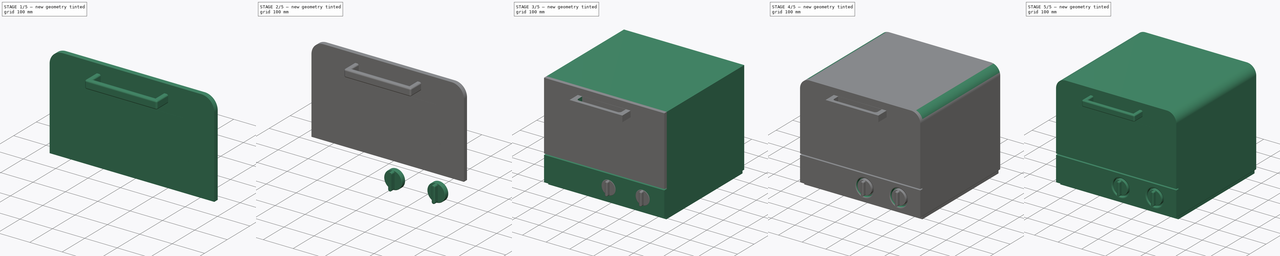
[diagram: build sequence overview — one tinted view per stage of 5, left to right]
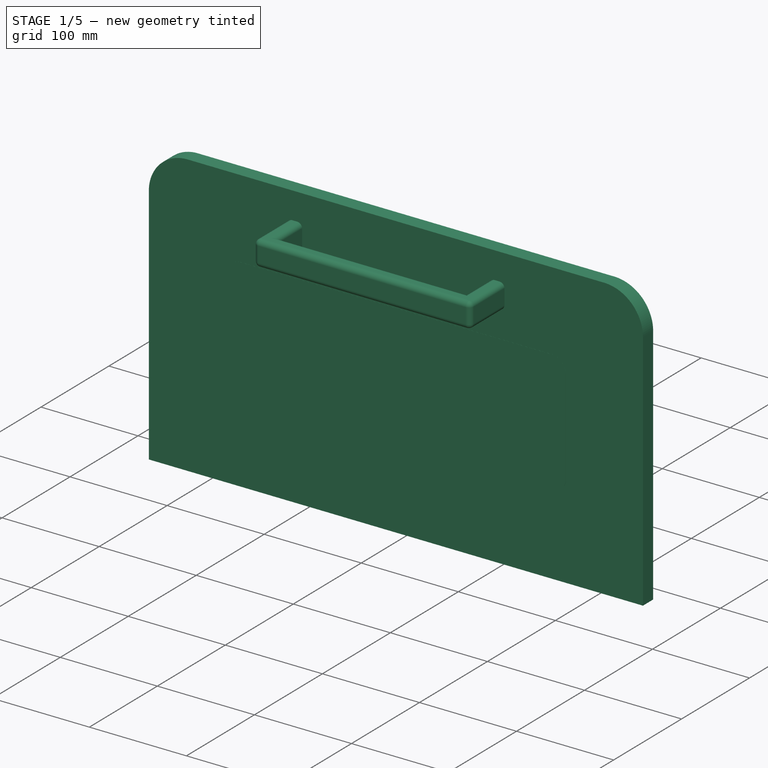
[diagram: stage 1 of 5 — iso view after this stage's code; geometry added in this stage tinted green]
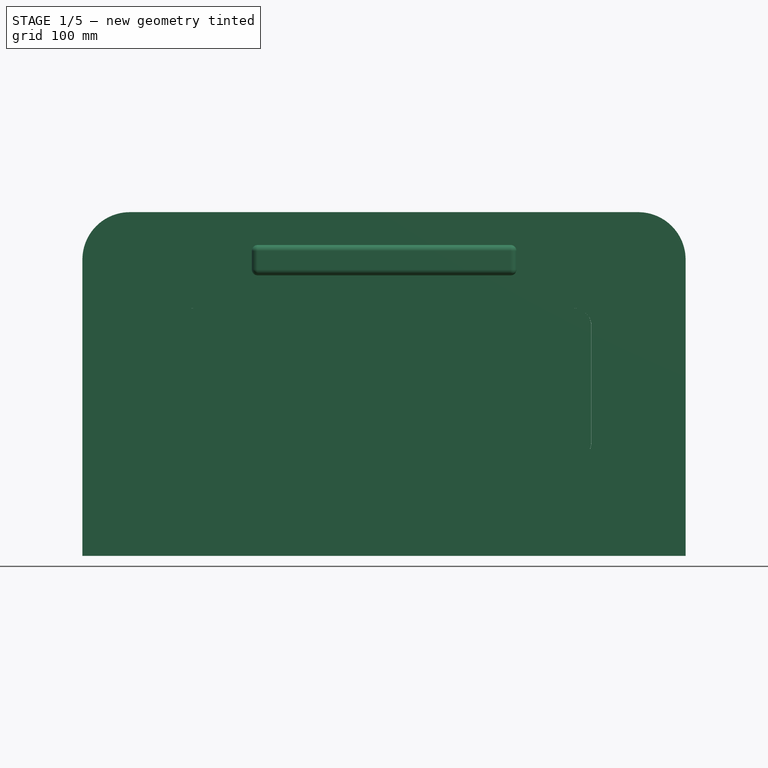
[diagram: stage 1 of 5 — front view after this stage's code; geometry added in this stage tinted green]
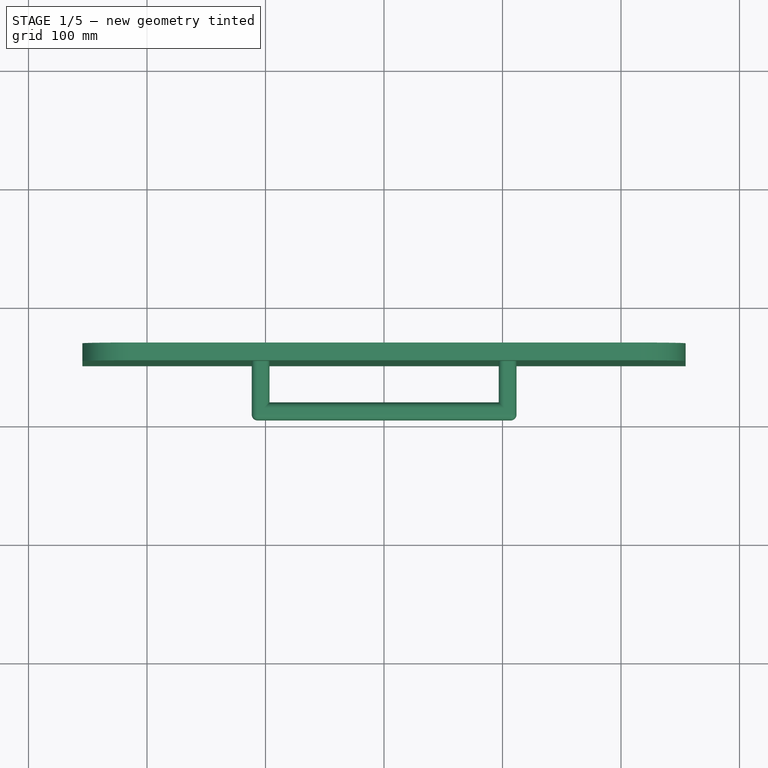
[diagram: stage 1 of 5 — top view after this stage's code; geometry added in this stage tinted green]
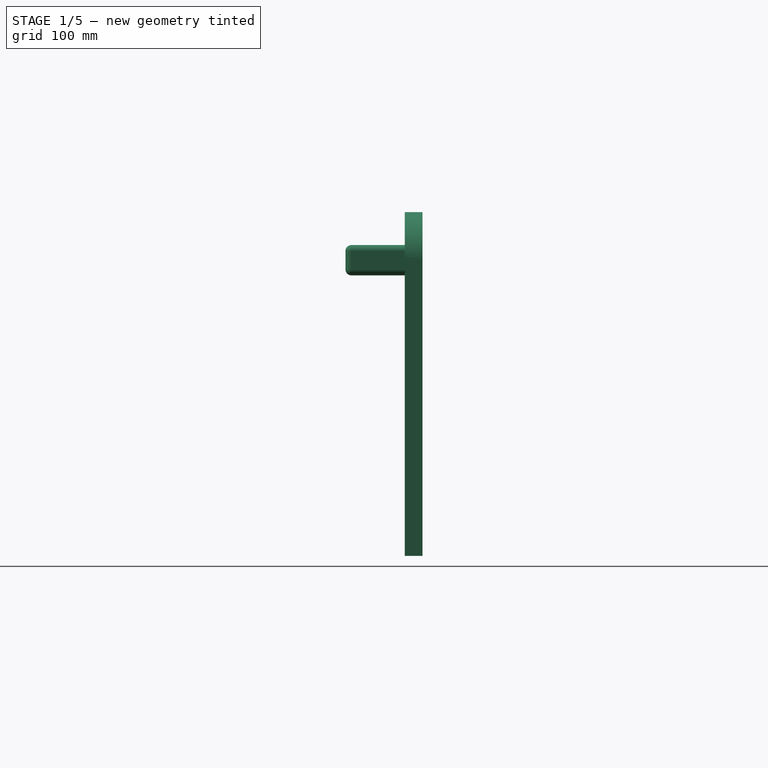
[diagram: stage 1 of 5 — right view after this stage's code; geometry added in this stage tinted green]
FCSTD DOCUMENT  (FreeCAD 1.0R39109 (Git))
Label: toasteroven
License: All rights reserved
LicenseURL: https://en.wikipedia.org/wiki/All_rights_reserved
objects: Sketcher::SketchObject×24, PartDesign::Pad×14, PartDesign::Fillet×14, PartDesign::ShapeBinder×13, PartDesign::Pocket×10, PartDesign::Line×8, PartDesign::Body×6, Part::FeaturePython×6, PartDesign::Plane×2, App::Part×1
note: 197 computed .brp shape members not serialized (recipe doc carries the construction recipe); baked Part::Feature solids carry a one-line shape summary decoded from their .brp

FEATURE [PartDesign::ShapeBinder] CopyPocket013
  TraceSupport = false
FEATURE [Sketcher::SketchObject] Sketch017
  ArcFitTolerance = 1e-06
  AttachmentSupport = -> [CopyPocket013]
  ExternalGeometry = -> [CopyPocket013]
  FullyConstrained = false
  MakeInternals = false
  MapMode = 5
  Placement = pos=(0,-249,0) rot=(1,0,0;1.5708rad)
  sketch-geometry (14):
    g0: LineSegment [constr] StartX=-160 StartY=332.961 StartZ=0 EndX=-175 EndY=332.895 EndZ=0
    g1: LineSegment [constr] StartX=-175 StartY=317.961 StartZ=0 EndX=-175 EndY=332.895 EndZ=0
    g2: LineSegment [constr] StartX=174.86 StartY=220.039 StartZ=0 EndX=174.86 EndY=205.023 EndZ=0
    g3: LineSegment [constr] StartX=160 StartY=205.039 StartZ=0 EndX=174.86 EndY=205.023 EndZ=0
    g4: LineSegment StartX=-175 StartY=318.234 StartZ=0 EndX=-175 EndY=219.685 EndZ=0
    g5: LineSegment StartX=-160.339 StartY=205.023 StartZ=0 EndX=160.199 EndY=205.023 EndZ=0
    g6: LineSegment StartX=174.86 StartY=219.685 StartZ=0 EndX=174.86 EndY=318.234 EndZ=0
    g7: LineSegment StartX=160.199 StartY=332.895 StartZ=0 EndX=-160.339 EndY=332.895 EndZ=0
    g8: ArcOfCircle CenterX=-160.339 CenterY=318.234 CenterZ=0 NormalX=0 NormalY=0 NormalZ=1 AngleXU=0 Radius=14.6613 StartAngle=1.5708 EndAngle=3.14159
    g9: ArcOfCircle CenterX=-160.339 CenterY=219.685 CenterZ=0 NormalX=0 NormalY=0 NormalZ=1 AngleXU=0 Radius=14.6613 StartAngle=3.14159 EndAngle=4.71239
    g10: ArcOfCircle CenterX=160.199 CenterY=219.685 CenterZ=0 NormalX=0 NormalY=0 NormalZ=1 AngleXU=0 Radius=14.6613 StartAngle=4.71239 EndAngle=6.28319
    g11: ArcOfCircle CenterX=160.199 CenterY=318.234 CenterZ=0 NormalX=0 NormalY=0 NormalZ=1 AngleXU=0 Radius=14.6613 StartAngle=0 EndAngle=1.5708
    g12: GeomPoint [constr] X=-175 Y=332.895 Z=0
    g13: GeomPoint [constr] X=174.86 Y=205.023 Z=0
  constraints (24):
    c: Coincident(g1,g-4)
    c: Vertical(g1)
    c: Coincident(g0,g1)
    c: Vertical(g2)
    c: PointOnObject(g2,g3)
    c: Tangent(g4,g8) = -1.5708
    c: Tangent(g4,g9) = -1.5708
    c: Tangent(g5,g9) = -1.5708
    c: Tangent(g5,g10) = -1.5708
    c: Tangent(g6,g10) = -1.5708
    c: Tangent(g6,g11) = -1.5708
    c: Tangent(g7,g11) = -1.5708
    c: Tangent(g7,g8) = -1.5708
    c: Vertical(g4)
    c: Vertical(g6)
    c: Horizontal(g5)
    c: Horizontal(g7)
    c: Equal(g8,g9)
    c: Equal(g9,g10)
    c: Equal(g10,g11)
    c: PointOnObject(g12,g4)
    c: PointOnObject(g12,g7)
    c: PointOnObject(g13,g5)
    c: PointOnObject(g13,g6)
FEATURE [PartDesign::Pad] Pad011
  Direction = (0,-1,2e-16)
  Length = 15
  Length2 = 10
  Profile = -> Sketch017
  ReferenceAxis = -> Sketch017 [N_Axis]
  Refine = true
  Reversed = true
  Suppressed = false
  Type = 0
FEATURE [PartDesign::Pad] Pad012
  Direction = (0,-1,2e-16)
  Length = 50
  Length2 = 10
  Profile = -> Sketch018
  ReferenceAxis = -> Sketch018 [N_Axis]
  Refine = true
  Suppressed = false
  Type = 0
FEATURE [Sketcher::SketchObject] Sketch020
  ArcFitTolerance = 1e-06
  AttachmentSupport = -> [Pad012]
  ExternalGeometry = -> [Pad012]
  FullyConstrained = true
  MakeInternals = false
  MapMode = 5
  Placement = pos=(0,8.5e-14,386.284) rot=(0,0,1;0rad)
  sketch-geometry (4):
    g0: LineSegment StartX=-96.6131 StartY=-284 StartZ=0 EndX=96.814 EndY=-284 EndZ=0
    g1: LineSegment StartX=96.814 StartY=-284 StartZ=0 EndX=96.814 EndY=-249 EndZ=0
    g2: LineSegment StartX=96.814 StartY=-249 StartZ=0 EndX=-96.6131 EndY=-249 EndZ=0
    g3: LineSegment StartX=-96.6131 StartY=-249 StartZ=0 EndX=-96.6131 EndY=-284 EndZ=0
  constraints (12):
    c: Coincident(g0,g1)
    c: Coincident(g1,g2)
    c: Coincident(g2,g3)
    c: Coincident(g3,g0)
    c: Horizontal(g0)
    c: Horizontal(g2)
    c: Vertical(g1)
    c: Vertical(g3)
    c: PointOnObject(g2,g-7)
    c: DistanceX(g-5,g0) = 15
    c: DistanceX(g0,g-6) = 15
    c: DistanceY(g-6,g0) = 15
FEATURE [PartDesign::Pocket] Pocket007
  BaseFeature = -> Pad012
  Direction = (0,0,-1)
  Length = 5
  Length2 = 5
  Profile = -> Sketch020
  ReferenceAxis = -> Sketch020 [N_Axis]
  Refine = true
  Suppressed = false
  Type = 1
FEATURE [PartDesign::Fillet] Fillet012
  Base = -> Pocket007 [Edge18]
  BaseFeature = -> Pocket007
  Radius = 5
  Refine = true
  SupportTransform = false
  Suppressed = false
  UseAllEdges = false
FEATURE [PartDesign::Fillet] Fillet013
  Base = -> Fillet012 [Edge22,Edge35,Edge21,Edge36,Edge19,Edge37]
  BaseFeature = -> Fillet012
  Radius = 5
  Refine = true
  SupportTransform = false
  Suppressed = false
  UseAllEdges = false
FEATURE [PartDesign::Body] Body004
  AllowCompound = false
  Group = -> [CopyPocket014,Sketch018,Pad012,Sketch020,Pocket007,Fillet012,Fillet013]
  Origin = -> Origin004
  Tip = -> Fillet013
FEATURE [PartDesign::ShapeBinder] CopyPocket015
  TraceSupport = false
FEATURE [Sketcher::SketchObject] Sketch021
  ArcFitTolerance = 1e-06
  AttachmentSupport = -> [CopyPocket015]
  ExternalGeometry = -> [CopyPocket015]
  FullyConstrained = false
  MakeInternals = false
  MapMode = 5
  Placement = pos=(0,-249,0) rot=(1,0,0;1.5708rad)
  sketch-geometry (14):
    g0: LineSegment [constr] StartX=-160 StartY=332.961 StartZ=0 EndX=-175 EndY=332.942 EndZ=0
    g1: LineSegment [constr] StartX=-175 StartY=317.961 StartZ=0 EndX=-175 EndY=332.942 EndZ=0
    g2: LineSegment [constr] StartX=175 StartY=220.039 StartZ=0 EndX=175 EndY=205.039 EndZ=0
    g3: LineSegment [constr] StartX=160 StartY=205.039 StartZ=0 EndX=175 EndY=205.039 EndZ=0
    g4: LineSegment [constr] StartX=-214.5 StartY=414 StartZ=0 EndX=-254.5 EndY=414 EndZ=0
    g5: LineSegment [constr] StartX=-254.5 StartY=374 StartZ=0 EndX=-254.5 EndY=414 EndZ=0
    g6: LineSegment StartX=-254.5 StartY=374 StartZ=0 EndX=-254.5 EndY=124 EndZ=0
    g7: LineSegment StartX=-254.5 StartY=124 StartZ=0 EndX=254.5 EndY=124 EndZ=0
    g8: LineSegment StartX=254.5 StartY=124 StartZ=0 EndX=254.5 EndY=374 EndZ=0
    g9: LineSegment StartX=214.5 StartY=414 StartZ=0 EndX=-214.5 EndY=414 EndZ=0
    g10: ArcOfCircle CenterX=-214.5 CenterY=374 CenterZ=0 NormalX=0 NormalY=0 NormalZ=1 AngleXU=0 Radius=40 StartAngle=1.5708 EndAngle=3.14159
    g11: ArcOfCircle CenterX=214.5 CenterY=374 CenterZ=0 NormalX=0 NormalY=0 NormalZ=1 AngleXU=0 Radius=40 StartAngle=0 EndAngle=1.5708
    g12: GeomPoint [constr] X=-254.5 Y=414 Z=0
    g13: GeomPoint [constr] X=254.5 Y=124 Z=0
  constraints (27):
    c: Coincident(g1,g-7)
    c: Vertical(g1)
    c: PointOnObject(g0,g1)
    c: Coincident(g2,g-8)
    c: Vertical(g2)
    c: Coincident(g3,g-8)
    c: Horizontal(g3)
    c: Coincident(g2,g3)
    c: Coincident(g4,g-4)
    c: Horizontal(g4)
    c: Coincident(g5,g-3)
    c: Vertical(g5)
    c: Coincident(g4,g5)
    c: Tangent(g6,g10) = -1.5708
    c: Tangent(g8,g11) = -1.5708
    c: Tangent(g9,g11) = -1.5708
    c: Tangent(g9,g10) = -1.5708
    c: Vertical(g6)
    c: Vertical(g8)
    c: Horizontal(g9)
    c: PointOnObject(g12,g9)
    c: Coincident(g12,g4)
    c: Coincident(g13,g-6)
    c: Coincident(g8,g13)
    c: Coincident(g7,g8)
    c: Coincident(g7,g-5)
    c: Coincident(g6,g7)
FEATURE [PartDesign::Pad] Pad013
  Direction = (0,-1,2e-16)
  Length = 15
  Length2 = 10
  Profile = -> Sketch021
  ReferenceAxis = -> Sketch021 [N_Axis]
  Refine = true
  Reversed = true
  Suppressed = false
  Type = 0
FEATURE [Sketcher::SketchObject] Sketch022
  ArcFitTolerance = 1e-06
  AttachmentSupport = -> [Pad013]
  ExternalGeometry = -> [CopyPocket015]
  FullyConstrained = false
  MakeInternals = false
  MapMode = 5
  Placement = pos=(0,-249,0) rot=(1,0,0;1.5708rad)
  sketch-geometry (14):
    g0: LineSegment [constr] StartX=-160 StartY=332.961 StartZ=0 EndX=-175 EndY=332.942 EndZ=0
    g1: LineSegment [constr] StartX=-175 StartY=317.961 StartZ=0 EndX=-175 EndY=332.942 EndZ=0
    g2: LineSegment [constr] StartX=175 StartY=220.039 StartZ=0 EndX=175 EndY=205.039 EndZ=0
    g3: LineSegment [constr] StartX=160 StartY=205.039 StartZ=0 EndX=175 EndY=205.039 EndZ=0
    g4: LineSegment StartX=-175 StartY=317.975 StartZ=0 EndX=-175 EndY=220.006 EndZ=0
    g5: LineSegment StartX=-160.033 StartY=205.039 StartZ=0 EndX=160.033 EndY=205.039 EndZ=0
    g6: LineSegment StartX=175 StartY=220.006 StartZ=0 EndX=175 EndY=317.975 EndZ=0
    g7: LineSegment StartX=160.033 StartY=332.942 StartZ=0 EndX=-160.033 EndY=332.942 EndZ=0
    g8: ArcOfCircle CenterX=-160.033 CenterY=317.975 CenterZ=0 NormalX=0 NormalY=0 NormalZ=1 AngleXU=0 Radius=14.9674 StartAngle=1.5708 EndAngle=3.14159
    g9: ArcOfCircle CenterX=-160.033 CenterY=220.006 CenterZ=0 NormalX=0 NormalY=0 NormalZ=1 AngleXU=0 Radius=14.9674 StartAngle=3.14159 EndAngle=4.71239
    g10: ArcOfCircle CenterX=160.033 CenterY=220.006 CenterZ=0 NormalX=0 NormalY=0 NormalZ=1 AngleXU=0 Radius=14.9674 StartAngle=4.71239 EndAngle=6.28319
    g11: ArcOfCircle CenterX=160.033 CenterY=317.975 CenterZ=0 NormalX=0 NormalY=0 NormalZ=1 AngleXU=0 Radius=14.9674 StartAngle=0 EndAngle=1.5708
    g12: GeomPoint [constr] X=-175 Y=332.942 Z=0
    g13: GeomPoint [constr] X=175 Y=205.039 Z=0
  constraints (26):
    c: Vertical(g1)
    c: PointOnObject(g0,g1)
    c: Vertical(g2)
    c: Horizontal(g3)
    c: Coincident(g2,g3)
    c: Tangent(g4,g8) = -1.5708
    c: Tangent(g4,g9) = -1.5708
    c: Tangent(g5,g9) = -1.5708
    c: Tangent(g5,g10) = -1.5708
    c: Tangent(g6,g10) = -1.5708
    c: Tangent(g6,g11) = -1.5708
    c: Tangent(g7,g11) = -1.5708
    c: Tangent(g7,g8) = -1.5708
    c: Vertical(g4)
    c: Vertical(g6)
    c: Horizontal(g5)
    c: Horizontal(g7)
    c: Equal(g8,g9)
    c: Equal(g9,g10)
    c: Equal(g10,g11)
    c: PointOnObject(g12,g4)
    c: PointOnObject(g12,g7)
    c: PointOnObject(g13,g5)
    c: PointOnObject(g13,g6)
    c: Coincident(g12,g0)
    c: Coincident(g13,g2)
FEATURE [PartDesign::Pocket] Pocket008
  BaseFeature = -> Pad013
  Direction = (0,1,-2e-16)
  Length = 15
  Length2 = 5
  Profile = -> Sketch022
  ReferenceAxis = -> Sketch022 [N_Axis]
  Refine = true
  Suppressed = false
  Type = 0
FEATURE [Part::FeaturePython] Clone004  label="fromt_panel_clone"  # Draft clone (typed FeaturePython)
  AttacherType = Attacher::AttachEngine3D
  Fuse = false
  Objects = -> [Body005]
  Scale = (1,1,1)
FEATURE [Part::FeaturePython] Clone005  label="glass_clone"  # Draft clone (typed FeaturePython)
  AttacherType = Attacher::AttachEngine3D
  Fuse = false
  Objects = -> [Body003]
  Scale = (1,1,1)
FEATURE [App::Part] Part  label="toasteroven"
  Group = -> [Clone,Clone001,Clone002,Clone003,Clone004,Clone005]
  Origin = -> Origin006
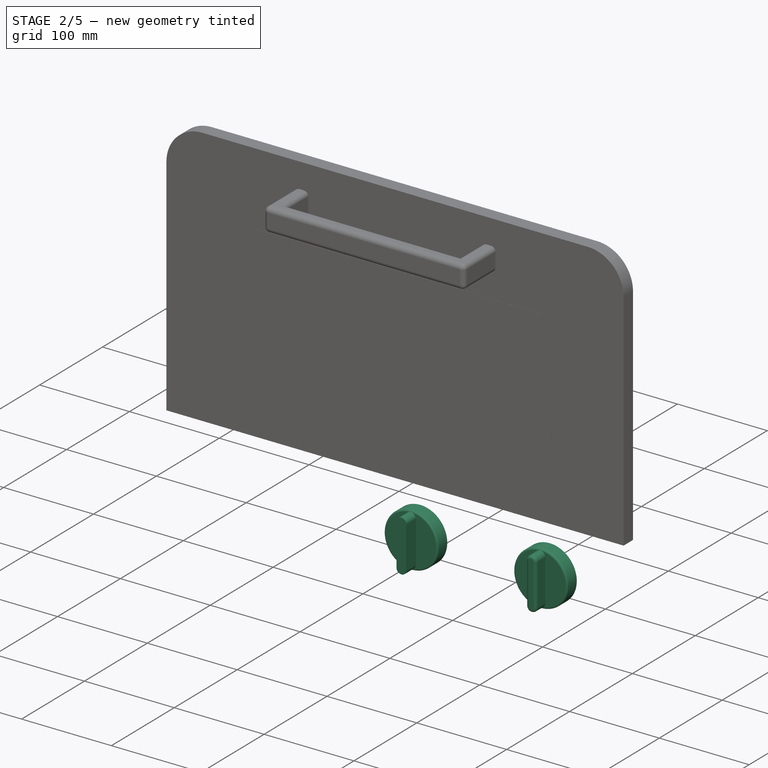
[diagram: stage 2 of 5 — iso view after this stage's code; geometry added in this stage tinted green]
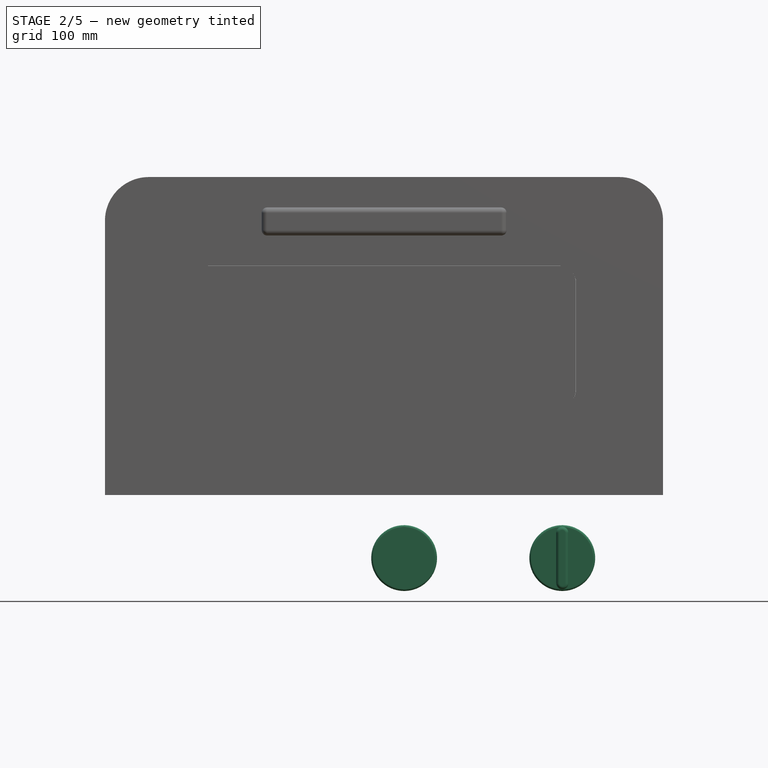
[diagram: stage 2 of 5 — front view after this stage's code; geometry added in this stage tinted green]
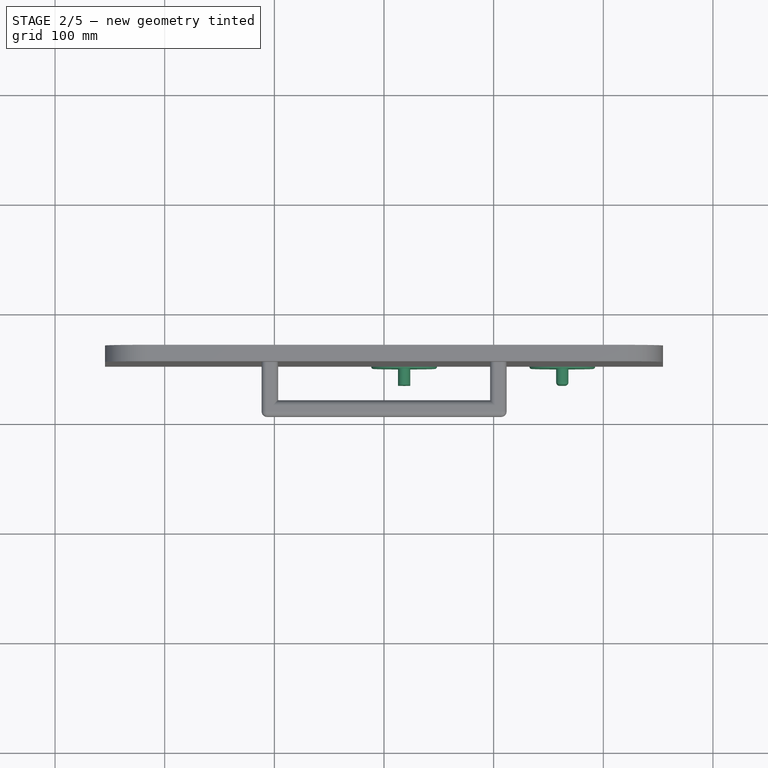
[diagram: stage 2 of 5 — top view after this stage's code; geometry added in this stage tinted green]
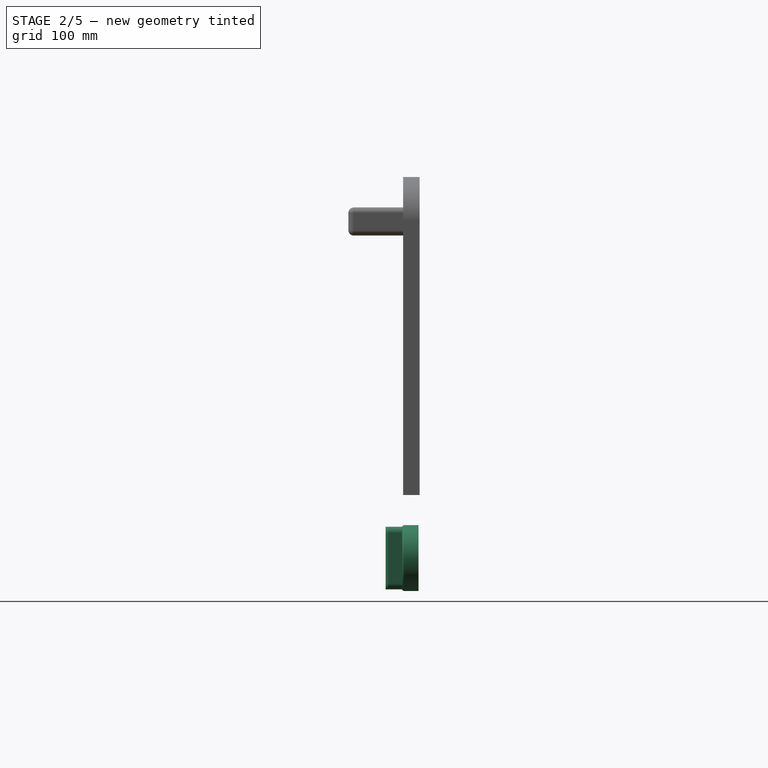
[diagram: stage 2 of 5 — right view after this stage's code; geometry added in this stage tinted green]
FEATURE [PartDesign::ShapeBinder] CopyPocket003
  Placement = pos=(0,-235,1.1e-13) rot=(1,0,0;1.5708rad)
  TraceSupport = false
FEATURE [PartDesign::Plane] DatumPlane
  AttachmentSupport = -> [CopyPocket003]
  Length = 105.028
  MapMode = 11
  Placement = pos=(18.3518,-235,66.5) rot=(0.57735,-0.57735,0.57735;2.0944rad)
  ResizeMode = 0
  Width = 63.5277
FEATURE [Sketcher::SketchObject] Sketch011
  ArcFitTolerance = 1e-06
  AttachmentSupport = -> [DatumPlane]
  ExternalGeometry = -> [CopyPocket003]
  FullyConstrained = false
  MakeInternals = false
  MapMode = 5
  Placement = pos=(18.3518,-235,66.5) rot=(0.57735,-0.57735,0.57735;2.0944rad)
  sketch-geometry (1):
    g0: Circle CenterX=0 CenterY=0 CenterZ=0 NormalX=0 NormalY=0 NormalZ=1 AngleXU=0 Radius=30
  constraints (1):
    c: Coincident(g0,g-1)
FEATURE [PartDesign::Pad] Pad007
  Direction = (0,-1,0)
  Length = 15
  Length2 = 10
  Placement = pos=(18.3518,-235,66.5) rot=(0.57735,-0.57735,0.57735;2.0944rad)
  Profile = -> Sketch011
  ReferenceAxis = -> Sketch011 [N_Axis]
  Refine = true
  Suppressed = false
  Type = 0
FEATURE [PartDesign::ShapeBinder] CopyPocket004
  Placement = pos=(0,-250,1.37e-13) rot=(1,0,0;1.5708rad)
  TraceSupport = false
FEATURE [PartDesign::Line] DatumLine
  AttacherType = Attacher::AttachEngineLine
  AttachmentSupport = -> [CopyPocket004]
  Length = 20
  MapMode = 29
  Placement = pos=(12.8089,-250,1.421e-13) rot=(0,1,0;3.14159rad)
  ResizeMode = 0
FEATURE [PartDesign::ShapeBinder] CopyPocket005
  TraceSupport = false
FEATURE [PartDesign::Line] DatumLine001
  AttacherType = Attacher::AttachEngineLine
  AttachmentSupport = -> [CopyPocket005]
  Length = 20
  MapMode = 19
  Placement = pos=(18.3518,-262,89.5) rot=(0,0.707107,0.707107;3.14159rad)
  ResizeMode = 0
FEATURE [PartDesign::ShapeBinder] CopyPocket006
  TraceSupport = false
FEATURE [PartDesign::Line] DatumLine002
  AttacherType = Attacher::AttachEngineLine
  AttachmentSupport = -> [CopyPocket006]
  Length = 20
  MapMode = 19
  Placement = pos=(18.3518,-262,43.5) rot=(-1,0,0;1.5708rad)
  ResizeMode = 0
FEATURE [PartDesign::ShapeBinder] CopyPocket007
  Placement = pos=(0,-250,1.37e-13) rot=(1,0,0;1.5708rad)
  TraceSupport = false
FEATURE [PartDesign::Line] DatumLine003
  AttacherType = Attacher::AttachEngineLine
  AttachmentSupport = -> [CopyPocket007]
  Length = 20
  MapMode = 29
  Placement = pos=(23.8947,-250,1.421e-13) rot=(0,1,0;3.14159rad)
  ResizeMode = 0
FEATURE [Sketcher::SketchObject] Sketch012
  ArcFitTolerance = 1e-06
  AttachmentSupport = -> [Pad007]
  ExternalGeometry = -> [DatumLine,DatumLine003,CopyPocket005,CopyPocket006]
  FullyConstrained = false
  MakeInternals = false
  MapMode = 5
  Placement = pos=(18.3518,-250,66.5) rot=(0.57735,-0.57735,0.57735;2.0944rad)
  sketch-geometry (4):
    g0: ArcOfCircle CenterX=-23 CenterY=-1.851e-13 CenterZ=0 NormalX=0 NormalY=0 NormalZ=1 AngleXU=0 Radius=5.5429 StartAngle=1.5708 EndAngle=4.71239
    g1: ArcOfCircle CenterX=23 CenterY=-1.851e-13 CenterZ=0 NormalX=0 NormalY=0 NormalZ=1 AngleXU=0 Radius=5.5429 StartAngle=4.71239 EndAngle=7.85398
    g2: LineSegment StartX=-23 StartY=5.5429 StartZ=0 EndX=23 EndY=5.5429 EndZ=0
    g3: LineSegment StartX=-23 StartY=-5.5429 StartZ=0 EndX=23 EndY=-5.5429 EndZ=0
  constraints (6):
    c: Tangent(g0,g2) = 1.5708
    c: Tangent(g0,g3) = -1.5708
    c: Tangent(g1,g2) = 1.5708
    c: Tangent(g1,g3) = -1.5708
    c: Equal(g0,g1)
    c: Horizontal(g3)
FEATURE [PartDesign::Pad] Pad008
  BaseFeature = -> Pad007
  Direction = (0,-1,0)
  Length = 15
  Length2 = 10
  Placement = pos=(18.3518,-235,66.5) rot=(0.57735,-0.57735,0.57735;2.0944rad)
  Profile = -> Sketch012
  ReferenceAxis = -> Sketch012 [N_Axis]
  Refine = true
  Suppressed = false
  Type = 0
FEATURE [PartDesign::Fillet] Fillet008
  Base = -> Pad008 [Edge3]
  BaseFeature = -> Pad008
  Placement = pos=(18.3518,-235,66.5) rot=(0.57735,-0.57735,0.57735;2.0944rad)
  Radius = 2
  Refine = true
  SupportTransform = false
  Suppressed = false
  UseAllEdges = false
FEATURE [PartDesign::Body] Body001
  AllowCompound = false
  Group = -> [DatumPlane,CopyPocket003,Sketch011,Pad007,DatumLine,CopyPocket004,DatumLine001,CopyPocket005,DatumLine002,CopyPocket006,DatumLine003,CopyPocket007,Sketch012,Pad008,Fillet008,Fillet009]
  Origin = -> Origin001
  Tip = -> Fillet009
FEATURE [PartDesign::ShapeBinder] CopyPocket008
  Placement = pos=(0,-235,1.1e-13) rot=(1,0,0;1.5708rad)
  TraceSupport = false
FEATURE [PartDesign::Plane] DatumPlane001
  AttachmentSupport = -> [CopyPocket008]
  Length = 117.702
  MapMode = 11
  Placement = pos=(162.576,-235,66.5) rot=(0.57735,-0.57735,0.57735;2.0944rad)
  ResizeMode = 0
  Width = 213.778
FEATURE [PartDesign::ShapeBinder] CopyPocket009
  TraceSupport = false
FEATURE [PartDesign::Line] DatumLine004
  AttacherType = Attacher::AttachEngineLine
  AttachmentSupport = -> [CopyPocket009]
  Length = 20
  MapMode = 29
  Placement = pos=(157.033,-262,0) rot=(0,0,1;0rad)
  ResizeMode = 0
FEATURE [PartDesign::ShapeBinder] CopyPocket010
  TraceSupport = false
FEATURE [PartDesign::Line] DatumLine005
  AttacherType = Attacher::AttachEngineLine
  AttachmentSupport = -> [CopyPocket010]
  Length = 20
  MapMode = 19
  Placement = pos=(162.576,-262,89.5) rot=(0,0.707107,0.707107;3.14159rad)
  ResizeMode = 0
FEATURE [PartDesign::ShapeBinder] CopyPocket011
  TraceSupport = false
FEATURE [PartDesign::Line] DatumLine006
  AttacherType = Attacher::AttachEngineLine
  AttachmentSupport = -> [CopyPocket011]
  Length = 20
  MapMode = 29
  Placement = pos=(168.119,-262,0) rot=(0,1,0;3.14159rad)
  ResizeMode = 0
FEATURE [PartDesign::ShapeBinder] CopyPocket012
  TraceSupport = false
FEATURE [PartDesign::Line] DatumLine007
  AttacherType = Attacher::AttachEngineLine
  AttachmentSupport = -> [CopyPocket012]
  Length = 20
  MapMode = 19
  Placement = pos=(162.576,-262,43.5) rot=(-1,0,0;1.5708rad)
  ResizeMode = 0
FEATURE [Sketcher::SketchObject] Sketch013
  ArcFitTolerance = 1e-06
  AttachmentSupport = -> [DatumPlane001]
  ExternalGeometry = -> [CopyPocket008]
  FullyConstrained = false
  MakeInternals = false
  MapMode = 5
  Placement = pos=(162.576,-235,66.5) rot=(0.57735,-0.57735,0.57735;2.0944rad)
  sketch-geometry (1):
    g0: Circle CenterX=0 CenterY=0 CenterZ=0 NormalX=0 NormalY=0 NormalZ=1 AngleXU=0 Radius=30
  constraints (1):
    c: Coincident(g0,g-1)
FEATURE [PartDesign::Pad] Pad009
  Direction = (0,-1,0)
  Length = 15
  Length2 = 10
  Placement = pos=(162.576,-235,66.5) rot=(0.57735,-0.57735,0.57735;2.0944rad)
  Profile = -> Sketch013
  ReferenceAxis = -> Sketch013 [N_Axis]
  Refine = true
  Suppressed = false
  Type = 0
FEATURE [Sketcher::SketchObject] Sketch014
  ArcFitTolerance = 1e-06
  AttachmentSupport = -> [Pad009]
  ExternalGeometry = -> [DatumLine004,DatumLine006,CopyPocket012,CopyPocket010]
  FullyConstrained = false
  MakeInternals = false
  MapMode = 5
  Placement = pos=(162.576,-250,66.5) rot=(0.57735,-0.57735,0.57735;2.0944rad)
  sketch-geometry (4):
    g0: ArcOfCircle CenterX=-23 CenterY=-3.707e-13 CenterZ=0 NormalX=0 NormalY=0 NormalZ=1 AngleXU=0 Radius=5.5429 StartAngle=1.5708 EndAngle=4.71239
    g1: ArcOfCircle CenterX=23 CenterY=-3.707e-13 CenterZ=0 NormalX=0 NormalY=0 NormalZ=1 AngleXU=0 Radius=5.5429 StartAngle=4.71239 EndAngle=7.85398
    g2: LineSegment StartX=-23 StartY=5.5429 StartZ=0 EndX=23 EndY=5.5429 EndZ=0
    g3: LineSegment StartX=-23 StartY=-5.5429 StartZ=0 EndX=23 EndY=-5.5429 EndZ=0
  constraints (6):
    c: Tangent(g0,g2) = 1.5708
    c: Tangent(g0,g3) = -1.5708
    c: Tangent(g1,g2) = 1.5708
    c: Tangent(g1,g3) = -1.5708
    c: Equal(g0,g1)
    c: Horizontal(g3)
FEATURE [PartDesign::Pad] Pad010
  BaseFeature = -> Pad009
  Direction = (0,-1,0)
  Length = 15
  Length2 = 10
  Placement = pos=(162.576,-235,66.5) rot=(0.57735,-0.57735,0.57735;2.0944rad)
  Profile = -> Sketch014
  ReferenceAxis = -> Sketch014 [N_Axis]
  Refine = true
  Suppressed = false
  Type = 0
FEATURE [PartDesign::Fillet] Fillet010
  Base = -> Pad010 [Edge3]
  BaseFeature = -> Pad010
  Placement = pos=(162.576,-235,66.5) rot=(0.57735,-0.57735,0.57735;2.0944rad)
  Radius = 2
  Refine = true
  SupportTransform = false
  Suppressed = false
  UseAllEdges = false
FEATURE [PartDesign::Fillet] Fillet011
  Base = -> Fillet010 [Edge30]
  BaseFeature = -> Fillet010
  Placement = pos=(162.576,-235,66.5) rot=(0.57735,-0.57735,0.57735;2.0944rad)
  Radius = 3
  Refine = true
  SupportTransform = false
  Suppressed = false
  UseAllEdges = false
FEATURE [Part::FeaturePython] Clone002  label="right_switch_clone"  # Draft clone (typed FeaturePython)
  AttacherType = Attacher::AttachEngine3D
  Fuse = false
  Objects = -> [Body002]
  Scale = (1,1,1)
FEATURE [Part::FeaturePython] Clone003  label="handle_clone"  # Draft clone (typed FeaturePython)
  AttacherType = Attacher::AttachEngine3D
  Fuse = false
  Objects = -> [Body004]
  Scale = (1,1,1)
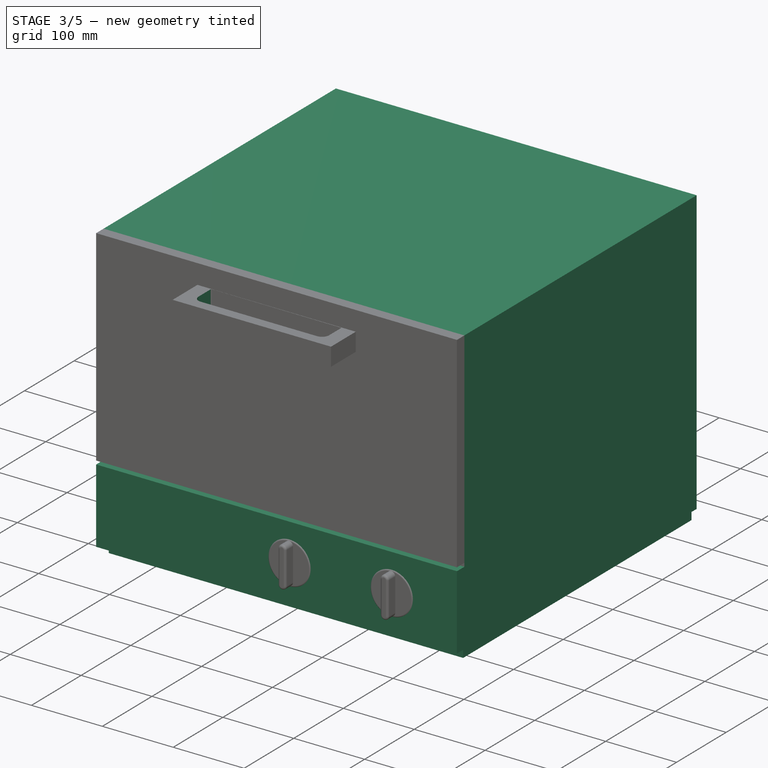
[diagram: stage 3 of 5 — iso view after this stage's code; geometry added in this stage tinted green]
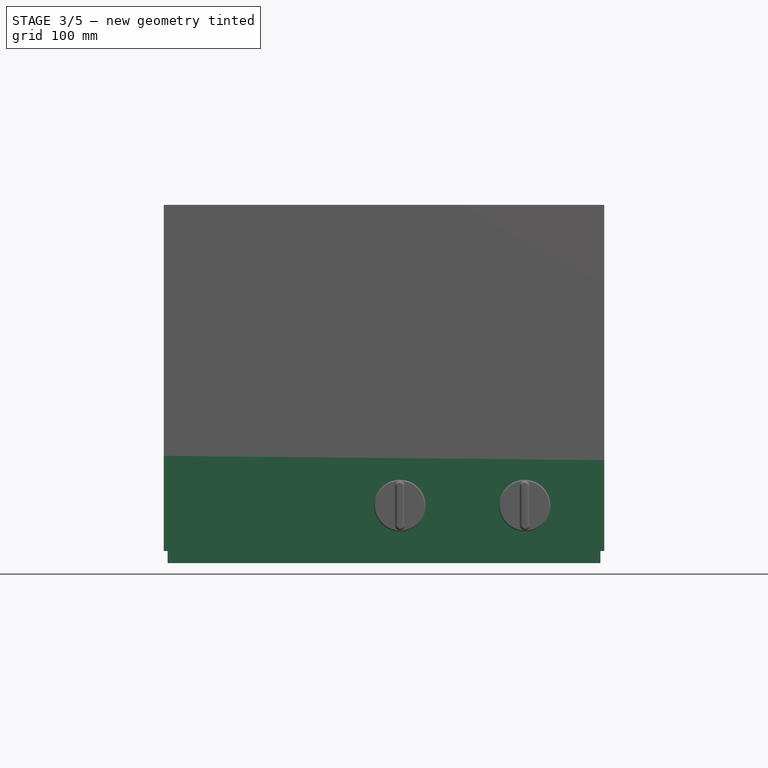
[diagram: stage 3 of 5 — front view after this stage's code; geometry added in this stage tinted green]
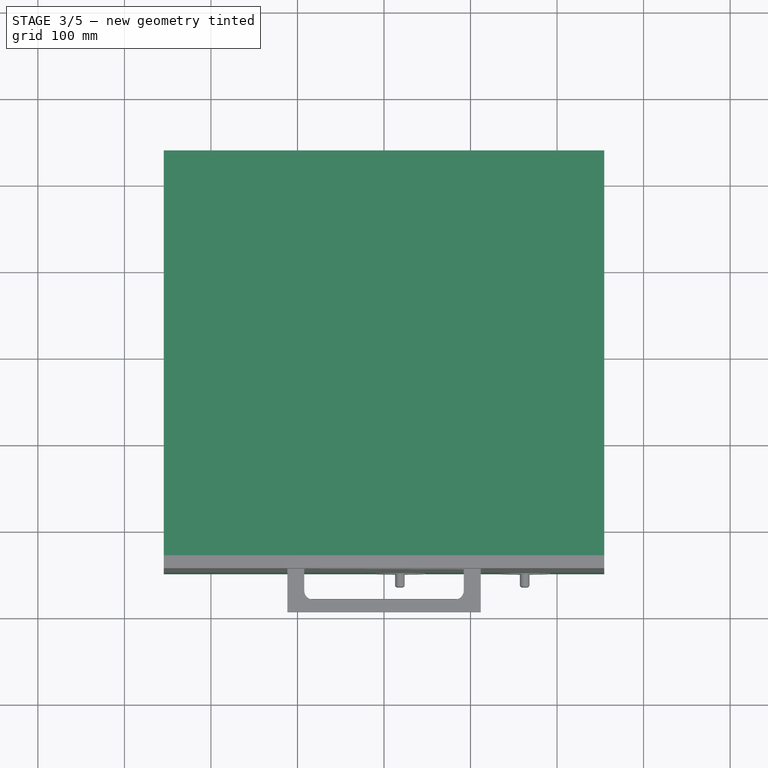
[diagram: stage 3 of 5 — top view after this stage's code; geometry added in this stage tinted green]
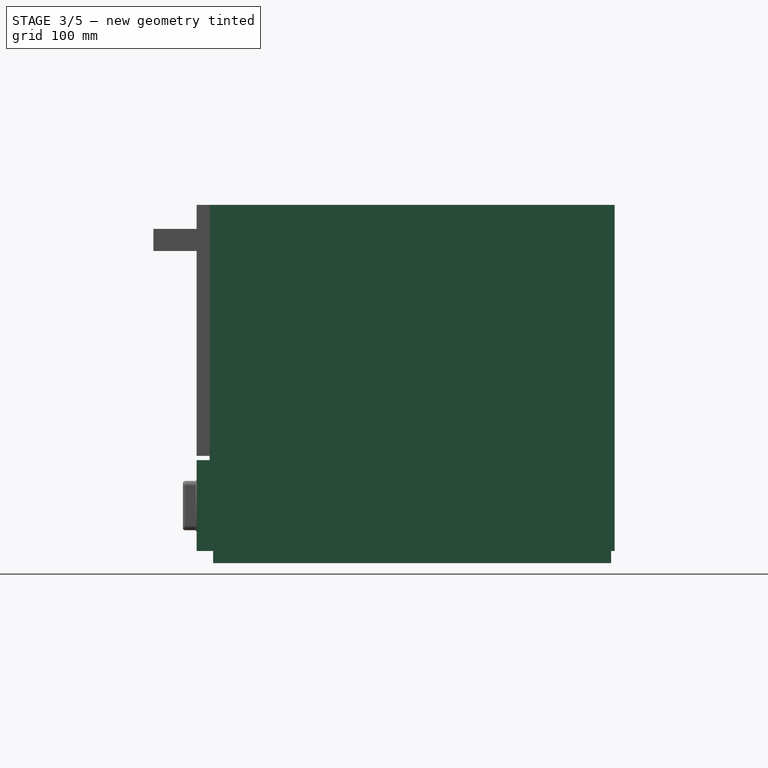
[diagram: stage 3 of 5 — right view after this stage's code; geometry added in this stage tinted green]
FEATURE [Sketcher::SketchObject] Sketch
  ArcFitTolerance = 1e-06
  AttachmentSupport = -> [XY_Plane]
  FullyConstrained = true
  MakeInternals = false
  MapMode = 5
  sketch-geometry (5):
    g0: LineSegment StartX=-250 StartY=-230 StartZ=0 EndX=250 EndY=-230 EndZ=0
    g1: LineSegment StartX=250 StartY=-230 StartZ=0 EndX=250 EndY=230 EndZ=0
    g2: LineSegment StartX=250 StartY=230 StartZ=0 EndX=-250 EndY=230 EndZ=0
    g3: LineSegment StartX=-250 StartY=230 StartZ=0 EndX=-250 EndY=-230 EndZ=0
    g4: GeomPoint [constr] X=0 Y=0 Z=0
  constraints (12):
    c: Coincident(g0,g1)
    c: Coincident(g1,g2)
    c: Coincident(g2,g3)
    c: Coincident(g3,g0)
    c: Horizontal(g0)
    c: Horizontal(g2)
    c: Vertical(g1)
    c: Vertical(g3)
    c: Symmetric(g2,g0,g4)
    c: Distance(g1,g3) = 500
    c: Distance(g0,g2) = 460
    c: Coincident(g4,g-1)
FEATURE [PartDesign::Pad] Pad
  Direction = (0,0,1)
  Length = 14
  Length2 = 10
  Profile = -> Sketch
  ReferenceAxis = -> Sketch [N_Axis]
  Refine = true
  Suppressed = false
  Type = 0
FEATURE [Sketcher::SketchObject] Sketch001
  ArcFitTolerance = 1e-06
  AttachmentSupport = -> [Pad]
  FullyConstrained = true
  MakeInternals = false
  MapMode = 5
  Placement = pos=(0,0,14) rot=(0,0,1;0rad)
  sketch-geometry (5):
    g0: LineSegment StartX=-254.5 StartY=-234 StartZ=0 EndX=254.5 EndY=-234 EndZ=0
    g1: LineSegment StartX=254.5 StartY=-234 StartZ=0 EndX=254.5 EndY=234 EndZ=0
    g2: LineSegment StartX=254.5 StartY=234 StartZ=0 EndX=-254.5 EndY=234 EndZ=0
    g3: LineSegment StartX=-254.5 StartY=234 StartZ=0 EndX=-254.5 EndY=-234 EndZ=0
    g4: GeomPoint [constr] X=0 Y=0 Z=0
  constraints (12):
    c: Coincident(g0,g1)
    c: Coincident(g1,g2)
    c: Coincident(g2,g3)
    c: Coincident(g3,g0)
    c: Horizontal(g0)
    c: Horizontal(g2)
    c: Vertical(g1)
    c: Vertical(g3)
    c: Symmetric(g2,g0,g4)
    c: Distance(g1,g3) = 509
    c: Distance(g0,g2) = 468
    c: Coincident(g4,g-1)
FEATURE [PartDesign::Pad] Pad001
  BaseFeature = -> Pad
  Direction = (0,0,1)
  Length = 400
  Length2 = 10
  Profile = -> Sketch001
  ReferenceAxis = -> Sketch001 [N_Axis]
  Refine = true
  Suppressed = false
  Type = 0
FEATURE [Sketcher::SketchObject] Sketch002
  ArcFitTolerance = 1e-06
  AttachmentSupport = -> [Pad001]
  ExternalGeometry = -> [Pad001]
  FullyConstrained = false
  MakeInternals = false
  MapMode = 5
  Placement = pos=(0,-234,0) rot=(1,0,0;1.5708rad)
  sketch-geometry (23):
    g0: LineSegment StartX=-254.5 StartY=414 StartZ=0 EndX=-254.5 EndY=124 EndZ=0
    g1: LineSegment StartX=-254.5 StartY=124 StartZ=0 EndX=254.5 EndY=124 EndZ=0
    g2: LineSegment StartX=254.5 StartY=124 StartZ=0 EndX=254.5 EndY=414 EndZ=0
    g3: LineSegment StartX=254.5 StartY=414 StartZ=0 EndX=-254.5 EndY=414 EndZ=0
    g4: LineSegment [constr] StartX=-254.5 StartY=124 StartZ=0 EndX=-254.5 EndY=119 EndZ=0
    g5: LineSegment StartX=-254.5 StartY=119 StartZ=0 EndX=-254.5 EndY=14 EndZ=0
    g6: LineSegment StartX=-254.5 StartY=14 StartZ=0 EndX=254.5 EndY=14 EndZ=0
    g7: LineSegment StartX=254.5 StartY=14 StartZ=0 EndX=254.5 EndY=119 EndZ=0
    g8: LineSegment StartX=254.5 StartY=119 StartZ=0 EndX=-254.5 EndY=119 EndZ=0
    g9: LineSegment StartX=-175 StartY=317.961 StartZ=0 EndX=-175 EndY=220.039 EndZ=0
    g10: LineSegment StartX=-160 StartY=205.039 StartZ=0 EndX=160 EndY=205.039 EndZ=0
    g11: LineSegment StartX=175 StartY=220.039 StartZ=0 EndX=175 EndY=317.961 EndZ=0
    g12: LineSegment StartX=160 StartY=332.961 StartZ=0 EndX=-160 EndY=332.961 EndZ=0
    g13: LineSegment [constr] StartX=0 StartY=414 StartZ=0 EndX=8.1e-15 EndY=124 EndZ=0
    g14: LineSegment [constr] StartX=-175 StartY=332.961 StartZ=0 EndX=0 EndY=269 EndZ=0
    g15: ArcOfCircle CenterX=-160 CenterY=317.961 CenterZ=0 NormalX=0 NormalY=0 NormalZ=1 AngleXU=0 Radius=15 StartAngle=1.5708 EndAngle=3.14159
    g16: GeomPoint [constr] X=-175 Y=332.961 Z=0
    g17: ArcOfCircle CenterX=-160 CenterY=220.039 CenterZ=0 NormalX=0 NormalY=0 NormalZ=1 AngleXU=0 Radius=15 StartAngle=3.14159 EndAngle=4.71239
    g18: GeomPoint [constr] X=-175 Y=205.039 Z=0
    g19: ArcOfCircle CenterX=160 CenterY=220.039 CenterZ=0 NormalX=0 NormalY=0 NormalZ=1 AngleXU=0 Radius=15 StartAngle=4.71239 EndAngle=6.28319
    g20: GeomPoint [constr] X=175 Y=205.039 Z=0
    g21: ArcOfCircle CenterX=160 CenterY=317.961 CenterZ=0 NormalX=0 NormalY=0 NormalZ=1 AngleXU=0 Radius=15 StartAngle=-1.7195e-12 EndAngle=1.5708
    g22: GeomPoint [constr] X=175 Y=332.961 Z=0
  constraints (54):
    c: Coincident(g0,g1)
    c: Coincident(g1,g2)
    c: Coincident(g2,g3)
    c: Coincident(g3,g0)
    c: Vertical(g0)
    c: Vertical(g2)
    c: Horizontal(g1)
    c: Horizontal(g3)
    c: Distance(g1,g3) = 290
    c: Coincident(g0,g-3)
    c: PointOnObject(g1,g-4)
    c: Coincident(g4,g0)
    c: PointOnObject(g4,g-3)
    c: DistanceY(g4,g4) = 5
    c: Coincident(g5,g6)
    c: Coincident(g6,g7)
    c: Coincident(g7,g8)
    c: Coincident(g8,g5)
    c: Vertical(g5)
    c: Vertical(g7)
    c: Horizontal(g6)
    c: Horizontal(g8)
    c: Coincident(g5,g4)
    c: Coincident(g6,g-4)
    c: Vertical(g9)
    c: Vertical(g11)
    c: Horizontal(g10)
    c: DistanceX(g16,g22) = 350
    c: Symmetric(g16,g22,g-2)
    c: PointOnObject(g13,g-2)
    c: Symmetric(g1,g1,g13)
    c: PointOnObject(g13,g3)
    c: Coincident(g14,g16)
    c: Symmetric(g13,g13,g14)
    c: PointOnObject(g16,g12)
    c: PointOnObject(g16,g9)
    c: Tangent(g12,g15) = -1.5708
    c: Tangent(g9,g15) = -1.5708
    c: PointOnObject(g18,g10)
    c: Tangent(g9,g17) = -1.5708
    c: Tangent(g10,g17) = -1.5708
    c: PointOnObject(g20,g10)
    c: PointOnObject(g20,g11)
    c: Tangent(g10,g19) = -1.5708
    c: Tangent(g11,g19) = -1.5708
    c: PointOnObject(g22,g11)
    c: PointOnObject(g22,g12)
    c: Tangent(g11,g21) = -1.5708
    c: Tangent(g12,g21) = -1.5708
    c: Equal(g15,g17)
    c: Equal(g17,g19)
    c: Equal(g19,g21)
    c: Symmetric(g22,g18,g14)
    c: Radius(g15) = 15
FEATURE [PartDesign::Pad] Pad002
  BaseFeature = -> Pad001
  Direction = (0,-1,2e-16)
  Length = 15
  Length2 = 10
  Profile = -> Sketch002
  ReferenceAxis = -> Sketch002 [N_Axis]
  Suppressed = false
  Type = 0
FEATURE [Sketcher::SketchObject] Sketch003
  ArcFitTolerance = 1e-06
  AttachmentSupport = -> [Pad002]
  ExternalGeometry = -> [Pad002]
  FullyConstrained = false
  MakeInternals = false
  MapMode = 5
  Placement = pos=(0,-234,0) rot=(1,0,0;1.5708rad)
  sketch-geometry (14):
    g0: LineSegment [constr] StartX=-160.058 StartY=332.961 StartZ=0 EndX=-175 EndY=332.961 EndZ=0
    g1: LineSegment [constr] StartX=175 StartY=220.08 StartZ=0 EndX=175 EndY=205.039 EndZ=0
    g2: LineSegment [constr] StartX=160 StartY=205.039 StartZ=0 EndX=175 EndY=205.039 EndZ=0
    g3: LineSegment [constr] StartX=-175 StartY=317.961 StartZ=0 EndX=-175 EndY=332.961 EndZ=0
    g4: LineSegment StartX=-175 StartY=317.961 StartZ=0 EndX=-175 EndY=220.039 EndZ=0
    g5: LineSegment StartX=-160 StartY=205.039 StartZ=0 EndX=160 EndY=205.039 EndZ=0
    g6: LineSegment StartX=175 StartY=220.039 StartZ=0 EndX=175 EndY=317.961 EndZ=0
    g7: LineSegment StartX=160 StartY=332.961 StartZ=0 EndX=-160 EndY=332.961 EndZ=0
    g8: ArcOfCircle CenterX=-160 CenterY=317.961 CenterZ=0 NormalX=0 NormalY=0 NormalZ=1 AngleXU=0 Radius=15 StartAngle=1.5708 EndAngle=3.14159
    g9: ArcOfCircle CenterX=-160 CenterY=220.039 CenterZ=0 NormalX=0 NormalY=0 NormalZ=1 AngleXU=0 Radius=15 StartAngle=3.14159 EndAngle=4.71239
    g10: ArcOfCircle CenterX=160 CenterY=220.039 CenterZ=0 NormalX=0 NormalY=0 NormalZ=1 AngleXU=0 Radius=15 StartAngle=4.71239 EndAngle=6.28319
    g11: ArcOfCircle CenterX=160 CenterY=317.961 CenterZ=0 NormalX=0 NormalY=0 NormalZ=1 AngleXU=0 Radius=15 StartAngle=0 EndAngle=1.5708
    g12: GeomPoint [constr] X=-175 Y=332.961 Z=0
    g13: GeomPoint [constr] X=175 Y=205.039 Z=0
  constraints (30):
    c: Coincident(g2,g-6)
    c: Horizontal(g2)
    c: Vertical(g1)
    c: Coincident(g1,g2)
    c: Coincident(g3,g-4)
    c: Vertical(g3)
    c: Horizontal(g0)
    c: Coincident(g0,g3)
    c: Tangent(g4,g8) = -1.5708
    c: Tangent(g4,g9) = -1.5708
    c: Tangent(g5,g9) = -1.5708
    c: Tangent(g5,g10) = -1.5708
    c: Tangent(g6,g10) = -1.5708
    c: Tangent(g6,g11) = -1.5708
    c: Tangent(g7,g11) = -1.5708
    c: Tangent(g7,g8) = -1.5708
    c: Vertical(g4)
    c: Vertical(g6)
    c: Horizontal(g5)
    c: Horizontal(g7)
    c: Equal(g8,g9)
    c: Equal(g9,g10)
    c: Equal(g10,g11)
    c: PointOnObject(g12,g4)
    c: PointOnObject(g12,g7)
    c: PointOnObject(g13,g5)
    c: PointOnObject(g13,g6)
    c: Radius(g9) = 15
    c: Coincident(g12,g0)
    c: Coincident(g13,g1)
FEATURE [PartDesign::Pad] Pad003
  BaseFeature = -> Pad002
  Direction = (0,-1,2e-16)
  Length = 15
  Length2 = 10
  Profile = -> Sketch003
  ReferenceAxis = -> Sketch003 [N_Axis]
  Suppressed = false
  Type = 0
FEATURE [Sketcher::SketchObject] Sketch004
  ArcFitTolerance = 1e-06
  AttachmentSupport = -> [Pad003]
  ExternalGeometry = -> [Pad003]
  FullyConstrained = false
  MakeInternals = false
  MapMode = 5
  Placement = pos=(0,-249,0) rot=(1,0,0;1.5708rad)
  sketch-geometry (6):
    g0: LineSegment StartX=-111.613 StartY=386.284 StartZ=0 EndX=-111.613 EndY=360.677 EndZ=0
    g1: LineSegment StartX=-111.613 StartY=360.677 StartZ=0 EndX=111.814 EndY=360.677 EndZ=0
    g2: LineSegment StartX=111.814 StartY=360.677 StartZ=0 EndX=111.814 EndY=386.284 EndZ=0
    g3: LineSegment StartX=111.814 StartY=386.284 StartZ=0 EndX=-111.613 EndY=386.284 EndZ=0
    g4: LineSegment [constr] StartX=0.100445 StartY=414 StartZ=0 EndX=0.100445 EndY=332.961 EndZ=0
    g5: LineSegment [constr] StartX=-111.613 StartY=386.284 StartZ=0 EndX=0.100445 EndY=373.481 EndZ=0
  constraints (14):
    c: Coincident(g0,g1)
    c: Coincident(g1,g2)
    c: Coincident(g2,g3)
    c: Coincident(g3,g0)
    c: Vertical(g0)
    c: Vertical(g2)
    c: Horizontal(g1)
    c: Horizontal(g3)
    c: Vertical(g4)
    c: PointOnObject(g4,g-4)
    c: PointOnObject(g4,g-3)
    c: Coincident(g5,g0)
    c: Symmetric(g4,g4,g5)
    c: Symmetric(g0,g2,g5)
FEATURE [PartDesign::Pad] Pad004
  BaseFeature = -> Pad003
  Direction = (0,-1,2e-16)
  Length = 50
  Length2 = 10
  Profile = -> Sketch004
  ReferenceAxis = -> Sketch004 [N_Axis]
  Suppressed = false
  Type = 0
FEATURE [Sketcher::SketchObject] Sketch005
  ArcFitTolerance = 1e-06
  AttachmentSupport = -> [Pad004]
  ExternalGeometry = -> [Pad004]
  FullyConstrained = false
  MakeInternals = false
  MapMode = 5
  Placement = pos=(0,8.5e-14,386.284) rot=(0,0,1;0rad)
  sketch-geometry (13):
    g0: LineSegment StartX=-92.1016 StartY=-250.2 StartZ=0 EndX=-92.1016 EndY=-274.605 EndZ=0
    g1: LineSegment StartX=-82.1016 StartY=-284.605 StartZ=0 EndX=82.1016 EndY=-284.605 EndZ=0
    g2: LineSegment StartX=92.1016 StartY=-274.605 StartZ=0 EndX=92.1016 EndY=-250.713 EndZ=0
    g3: LineSegment StartX=91.1044 StartY=-249.713 StartZ=0 EndX=-91.0988 EndY=-249.2 EndZ=0
    g4: ArcOfCircle CenterX=-82.1016 CenterY=-274.605 CenterZ=0 NormalX=0 NormalY=0 NormalZ=1 AngleXU=0 Radius=10 StartAngle=3.14159 EndAngle=4.71239
    g5: GeomPoint [constr] X=-92.1016 Y=-284.605 Z=0
    g6: ArcOfCircle CenterX=82.1016 CenterY=-274.605 CenterZ=0 NormalX=0 NormalY=0 NormalZ=1 AngleXU=0 Radius=10 StartAngle=4.71239 EndAngle=6.28319
    g7: GeomPoint [constr] X=92.1016 Y=-284.605 Z=0
    g8: ArcOfCircle CenterX=-91.1016 CenterY=-250.2 CenterZ=0 NormalX=0 NormalY=0 NormalZ=1 AngleXU=0 Radius=1 StartAngle=1.56798 EndAngle=3.14159
    g9: GeomPoint [constr] X=-92.1012 Y=-249 Z=0
    g10: ArcOfCircle CenterX=91.1016 CenterY=-250.713 CenterZ=0 NormalX=0 NormalY=0 NormalZ=1 AngleXU=0 Radius=1 StartAngle=7.3e-15 EndAngle=1.56798
    g11: GeomPoint [constr] X=92.1012 Y=-249 Z=0
    g12: LineSegment [constr] StartX=-91.0988 StartY=-249.2 StartZ=0 EndX=-91.0988 EndY=-249 EndZ=0
  constraints (23):
    c: Vertical(g0)
    c: Vertical(g2)
    c: Symmetric(g5,g7,g-2)
    c: PointOnObject(g5,g0)
    c: PointOnObject(g5,g1)
    c: Tangent(g0,g4) = -1.5708
    c: Tangent(g1,g4) = -1.5708
    c: PointOnObject(g7,g1)
    c: PointOnObject(g7,g2)
    c: Tangent(g1,g6) = -1.5708
    c: Tangent(g2,g6) = -1.5708
    c: Equal(g6,g4)
    c: Radius(g6) = 10
    c: Tangent(g3,g8) = -1.5708
    c: Tangent(g0,g8) = -1.5708
    c: Tangent(g3,g10) = -1.5708
    c: Tangent(g2,g10) = -1.5708
    c: Equal(g10,g8)
    c: Radius(g10) = 1
    c: Coincident(g12,g3)
    c: Vertical(g12)
    c: PointOnObject(g12,g-3)
    c: DistanceY(g12,g12) = 0.2
FEATURE [PartDesign::Pocket] Pocket
  BaseFeature = -> Pad004
  Direction = (0,0,-1)
  Length = 5
  Length2 = 5
  Profile = -> Sketch005
  ReferenceAxis = -> Sketch005 [N_Axis]
  Suppressed = false
  Type = 1
FEATURE [PartDesign::Fillet] Fillet009
  Base = -> Fillet008 [Edge31]
  BaseFeature = -> Fillet008
  Placement = pos=(18.3518,-235,66.5) rot=(0.57735,-0.57735,0.57735;2.0944rad)
  Radius = 3
  Refine = true
  SupportTransform = false
  Suppressed = false
  UseAllEdges = false
FEATURE [Part::FeaturePython] Clone001  label="left_switch_clone"  # Draft clone (typed FeaturePython)
  AttacherType = Attacher::AttachEngine3D
  Fuse = false
  Objects = -> [Body001]
  Scale = (1,1,1)
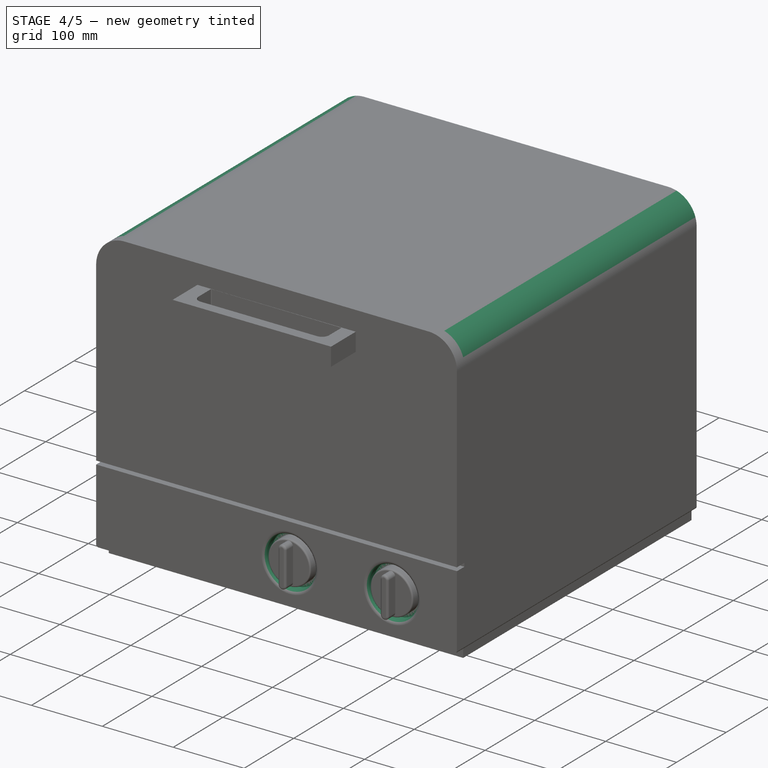
[diagram: stage 4 of 5 — iso view after this stage's code; geometry added in this stage tinted green]
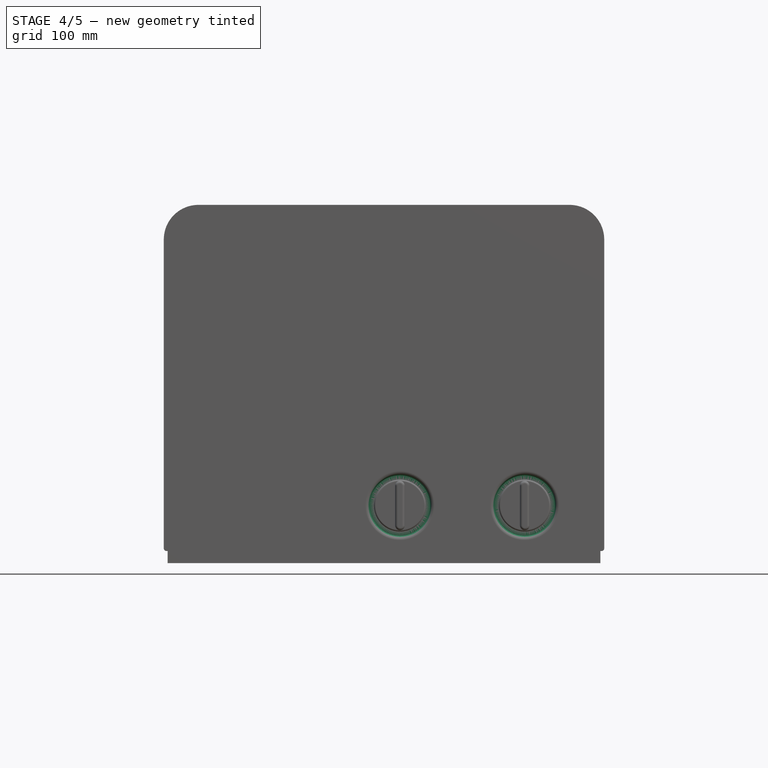
[diagram: stage 4 of 5 — front view after this stage's code; geometry added in this stage tinted green]
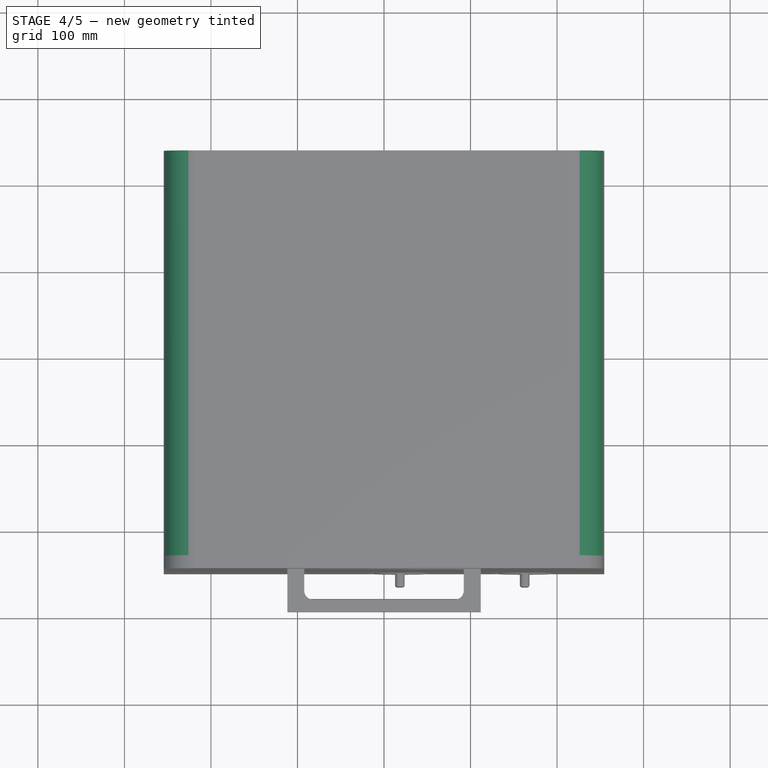
[diagram: stage 4 of 5 — top view after this stage's code; geometry added in this stage tinted green]
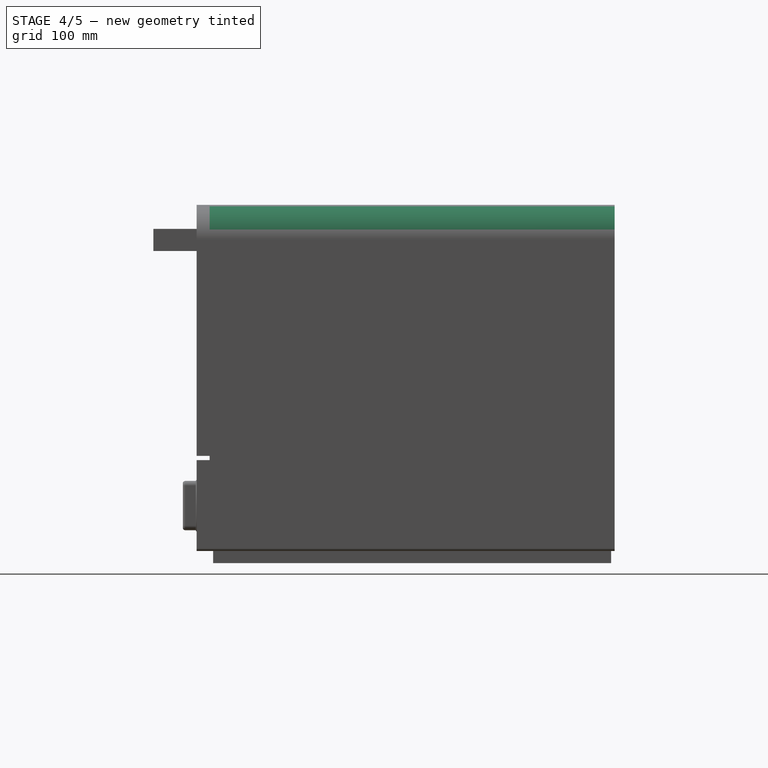
[diagram: stage 4 of 5 — right view after this stage's code; geometry added in this stage tinted green]
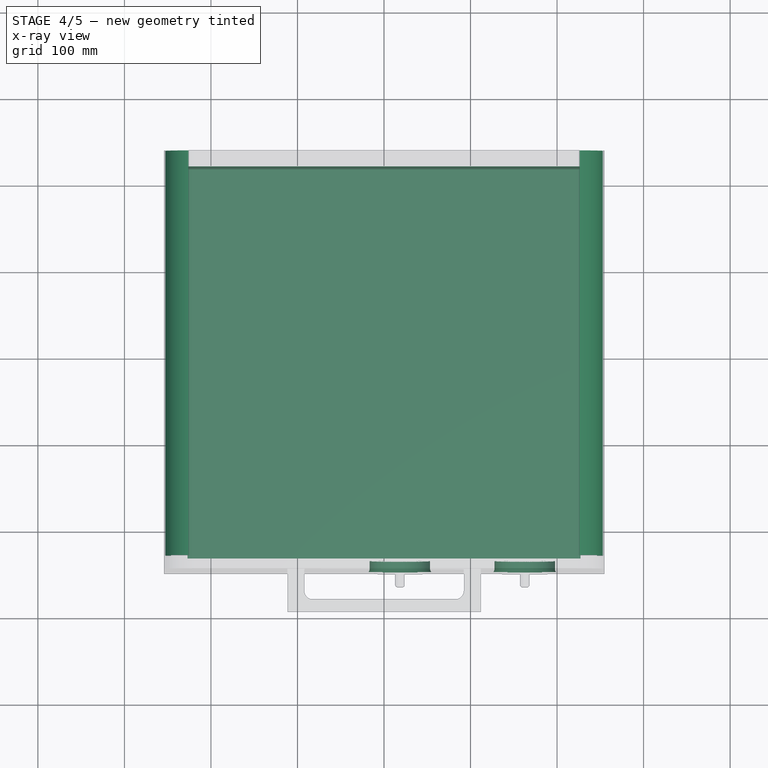
[diagram: stage 4 of 5 — x-ray composite at the top view; earlier geometry ghosted, this stage's added geometry solid]
FEATURE [Sketcher::SketchObject] Sketch006
  ArcFitTolerance = 1e-06
  AttachmentSupport = -> [Pocket]
  ExternalGeometry = -> [Pocket]
  FullyConstrained = false
  MakeInternals = false
  MapMode = 5
  Placement = pos=(0,-249,0) rot=(1,0,0;1.5708rad)
  sketch-geometry (4):
    g0: Circle CenterX=162.576 CenterY=66.5 CenterZ=0 NormalX=0 NormalY=0 NormalZ=1 AngleXU=0 Radius=35
    g1: Circle CenterX=18.3518 CenterY=66.5 CenterZ=0 NormalX=0 NormalY=0 NormalZ=1 AngleXU=0 Radius=35
    g2: LineSegment [constr] StartX=18.3518 StartY=66.5 StartZ=0 EndX=18.3518 EndY=119 EndZ=0
    g3: LineSegment [constr] StartX=18.3518 StartY=66.5 StartZ=0 EndX=18.3518 EndY=14 EndZ=0
  constraints (9):
    c: Equal(g0,g1)
    c: Radius(g1) = 35
    c: Coincident(g2,g1)
    c: Vertical(g2)
    c: Coincident(g3,g1)
    c: PointOnObject(g2,g-3)
    c: PointOnObject(g3,g-4)
    c: Symmetric(g2,g3,g1)
    c: Horizontal(g0,g1)
FEATURE [PartDesign::Pocket] Pocket001
  BaseFeature = -> Pocket
  Direction = (0,1,-2e-16)
  Length = 14
  Length2 = 5
  Profile = -> Sketch006
  ReferenceAxis = -> Sketch006 [N_Axis]
  Suppressed = false
  Type = 0
FEATURE [Sketcher::SketchObject] Sketch007
  ArcFitTolerance = 1e-06
  AttachmentSupport = -> [Pocket001]
  ExternalGeometry = -> [Pocket001]
  FullyConstrained = true
  MakeInternals = false
  MapMode = 5
  Placement = pos=(0,-235,1.105e-13) rot=(1,0,0;1.5708rad)
  sketch-geometry (2):
    g0: Circle CenterX=18.3518 CenterY=66.5 CenterZ=0 NormalX=0 NormalY=0 NormalZ=1 AngleXU=0 Radius=30
    g1: Circle CenterX=162.576 CenterY=66.5 CenterZ=0 NormalX=0 NormalY=0 NormalZ=1 AngleXU=0 Radius=30
  constraints (4):
    c: Diameter(g0) = 60
    c: Coincident(g0,g-3)
    c: Diameter(g1) = 60
    c: Coincident(g1,g-4)
FEATURE [PartDesign::Pad] Pad005
  BaseFeature = -> Pocket001
  Direction = (0,-1,2e-16)
  Length = 15
  Length2 = 10
  Profile = -> Sketch007
  ReferenceAxis = -> Sketch007 [N_Axis]
  Suppressed = false
  Type = 0
FEATURE [Sketcher::SketchObject] Sketch008
  ArcFitTolerance = 1e-06
  AttachmentSupport = -> [Pad005]
  ExternalGeometry = -> [Pad005]
  FullyConstrained = false
  MakeInternals = false
  MapMode = 5
  Placement = pos=(0,-250,1.375e-13) rot=(1,0,0;1.5708rad)
  sketch-geometry (8):
    g0: ArcOfCircle CenterX=18.3518 CenterY=89.5 CenterZ=0 NormalX=0 NormalY=0 NormalZ=1 AngleXU=0 Radius=5.5429 StartAngle=1.2e-15 EndAngle=3.14159
    g1: ArcOfCircle CenterX=18.3518 CenterY=43.5 CenterZ=0 NormalX=0 NormalY=0 NormalZ=1 AngleXU=0 Radius=5.5429 StartAngle=3.14159 EndAngle=6.28319
    g2: LineSegment StartX=23.8947 StartY=89.5 StartZ=0 EndX=23.8947 EndY=43.5 EndZ=0
    g3: LineSegment StartX=12.8089 StartY=89.5 StartZ=0 EndX=12.8089 EndY=43.5 EndZ=0
    g4: ArcOfCircle CenterX=162.576 CenterY=89.5 CenterZ=0 NormalX=0 NormalY=0 NormalZ=1 AngleXU=0 Radius=5.5429 StartAngle=-9e-16 EndAngle=3.14159
    g5: ArcOfCircle CenterX=162.576 CenterY=43.5 CenterZ=0 NormalX=0 NormalY=0 NormalZ=1 AngleXU=0 Radius=5.5429 StartAngle=3.14159 EndAngle=6.28319
    g6: LineSegment StartX=168.119 StartY=89.5 StartZ=0 EndX=168.119 EndY=43.5 EndZ=0
    g7: LineSegment StartX=157.033 StartY=89.5 StartZ=0 EndX=157.033 EndY=43.5 EndZ=0
  constraints (17):
    c: Tangent(g0,g2) = 1.5708
    c: Tangent(g0,g3) = -1.5708
    c: Tangent(g1,g2) = 1.5708
    c: Tangent(g1,g3) = -1.5708
    c: Equal(g0,g1)
    c: Vertical(g2)
    c: Tangent(g4,g6) = 1.5708
    c: Tangent(g4,g7) = -1.5708
    c: Tangent(g5,g6) = 1.5708
    c: Tangent(g5,g7) = -1.5708
    c: Equal(g4,g5)
    c: Symmetric(g0,g1,g-3)
    c: Symmetric(g4,g5,g-4)
    c: Vertical(g4,g5)
    c: Equal(g7,g3)
    c: Equal(g0,g4)
    c: DistanceY(g3,g3) = 46
FEATURE [PartDesign::Pad] Pad006
  BaseFeature = -> Pad005
  Direction = (0,-1,2e-16)
  Length = 15
  Length2 = 10
  Profile = -> Sketch008
  ReferenceAxis = -> Sketch008 [N_Axis]
  Suppressed = false
  Type = 0
FEATURE [Sketcher::SketchObject] Sketch009
  ArcFitTolerance = 1e-06
  AttachmentSupport = -> [Pad001]
  FullyConstrained = false
  MakeInternals = false
  MapMode = 5
  Placement = pos=(0,-234,0) rot=(1,0,0;1.5708rad)
  sketch-geometry (4):
    g0: LineSegment StartX=-227.24 StartY=377.791 StartZ=0 EndX=-227.24 EndY=190.77 EndZ=0
    g1: LineSegment StartX=-227.24 StartY=190.77 StartZ=0 EndX=227.24 EndY=190.77 EndZ=0
    g2: LineSegment StartX=227.24 StartY=190.77 StartZ=0 EndX=227.24 EndY=377.791 EndZ=0
    g3: LineSegment StartX=227.24 StartY=377.791 StartZ=0 EndX=-227.24 EndY=377.791 EndZ=0
  constraints (8):
    c: Coincident(g0,g1)
    c: Coincident(g1,g2)
    c: Coincident(g2,g3)
    c: Coincident(g3,g0)
    c: Vertical(g0)
    c: Vertical(g2)
    c: Horizontal(g1)
    c: Symmetric(g0,g2,g-2)
FEATURE [PartDesign::Pocket] Pocket002
  BaseFeature = -> Pad006
  Direction = (0,1,-2e-16)
  Length = 450
  Length2 = 5
  Profile = -> Sketch009
  ReferenceAxis = -> Sketch009 [N_Axis]
  Suppressed = false
  Type = 0
FEATURE [PartDesign::Fillet] Fillet
  Base = -> Pocket002 [Edge13,Edge14]
  BaseFeature = -> Pocket002
  Radius = 3
  SupportTransform = false
  Suppressed = false
  UseAllEdges = false
FEATURE [PartDesign::Fillet] Fillet001
  Base = -> Fillet [Edge45,Edge38]
  BaseFeature = -> Fillet
  Radius = 40
  SupportTransform = false
  Suppressed = false
  UseAllEdges = false
FEATURE [PartDesign::Fillet] Fillet002
  Base = -> Fillet001 [Edge79,Edge80]
  BaseFeature = -> Fillet001
  Radius = 5
  SupportTransform = false
  Suppressed = false
  UseAllEdges = false
FEATURE [PartDesign::Fillet] Fillet003
  Base = -> Fillet002 [Edge74,Edge94]
  BaseFeature = -> Fillet002
  Radius = 2
  SupportTransform = false
  Suppressed = false
  UseAllEdges = false
FEATURE [PartDesign::Fillet] Fillet004
  Base = -> Fillet003 [Edge33,Edge181]
  BaseFeature = -> Fillet003
  Radius = 3
  SupportTransform = false
  Suppressed = false
  UseAllEdges = false
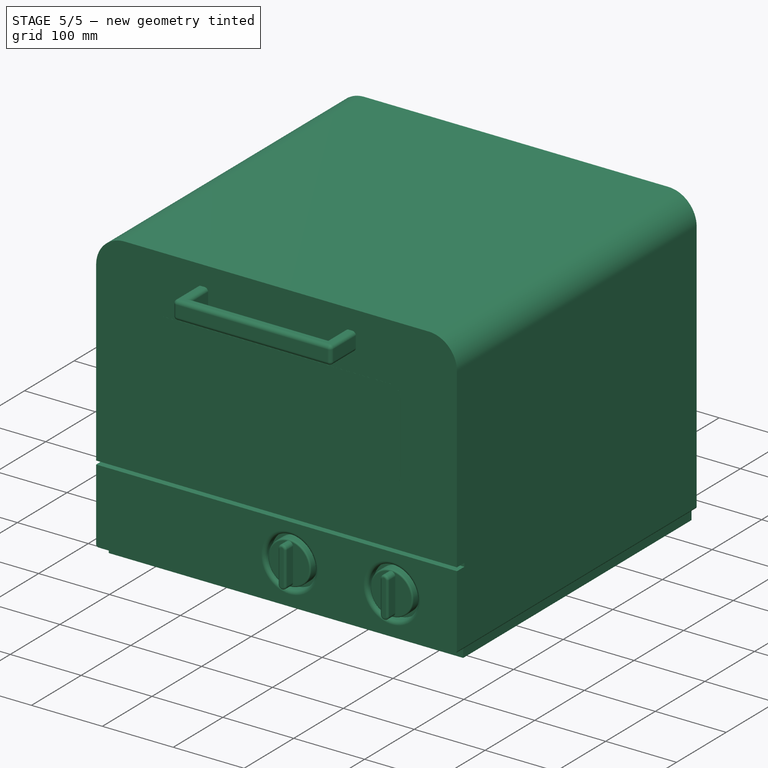
[diagram: stage 5 of 5 — iso view after this stage's code; geometry added in this stage tinted green]
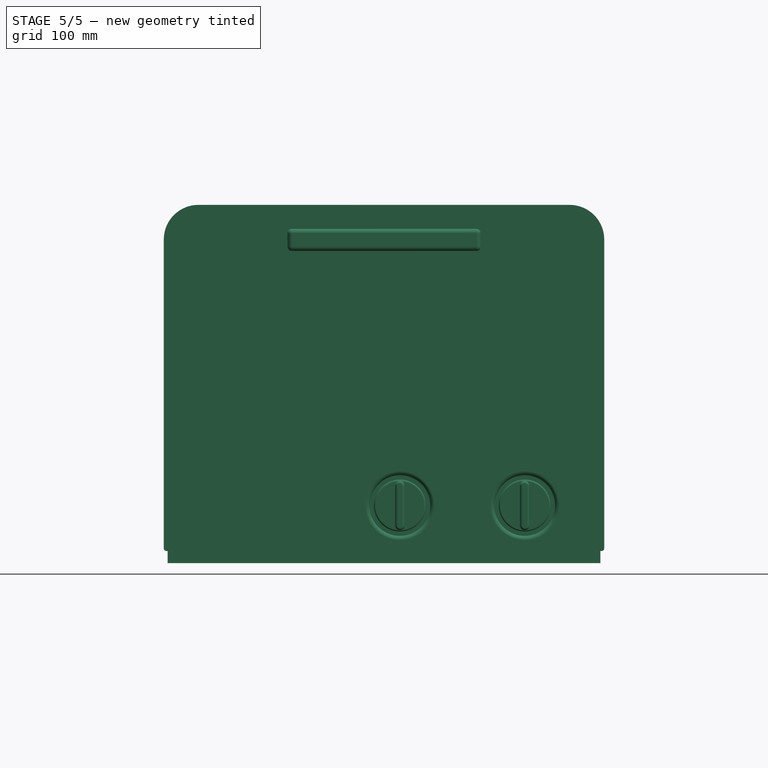
[diagram: stage 5 of 5 — front view after this stage's code; geometry added in this stage tinted green]
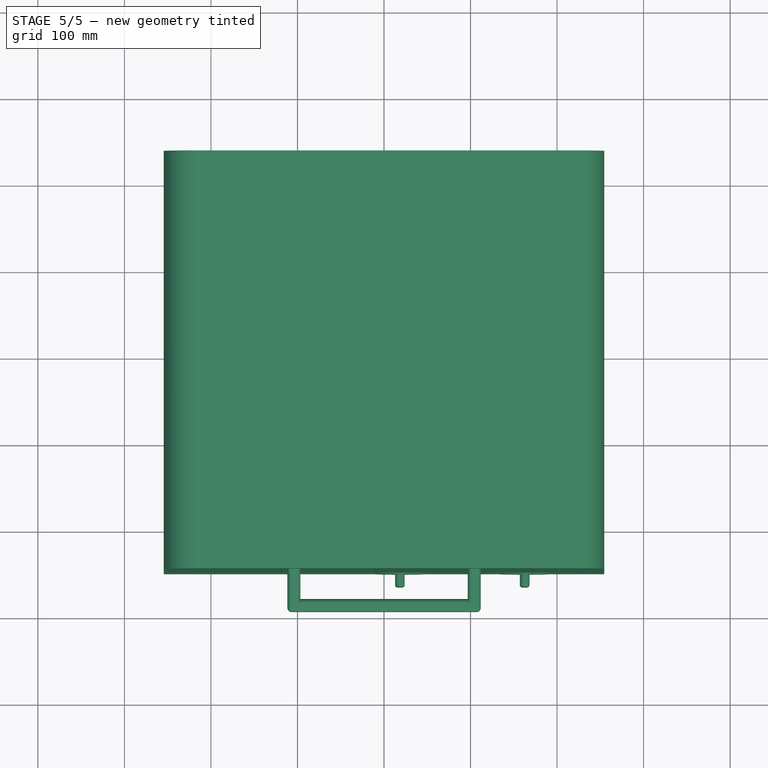
[diagram: stage 5 of 5 — top view after this stage's code; geometry added in this stage tinted green]
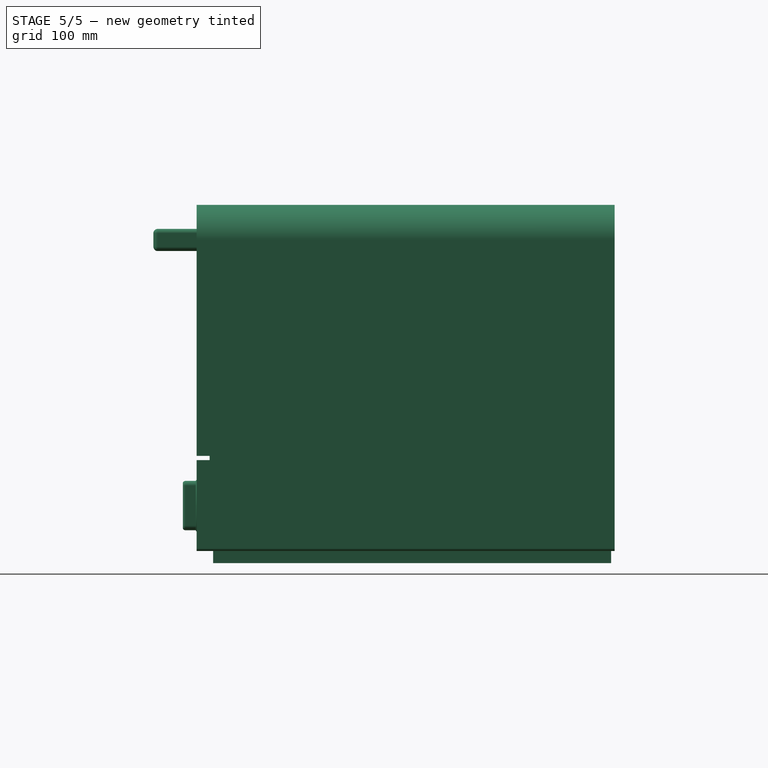
[diagram: stage 5 of 5 — right view after this stage's code; geometry added in this stage tinted green]
FEATURE [PartDesign::Fillet] Fillet005
  Base = -> Fillet004 [Edge158,Edge147]
  BaseFeature = -> Fillet004
  Radius = 10
  SupportTransform = false
  Suppressed = false
  UseAllEdges = false
FEATURE [PartDesign::Fillet] Fillet006
  Base = -> Fillet005 [Edge4]
  BaseFeature = -> Fillet005
  Radius = 5
  SupportTransform = false
  Suppressed = false
  UseAllEdges = false
FEATURE [PartDesign::Fillet] Fillet007
  Base = -> Fillet006 [Edge14]
  BaseFeature = -> Fillet006
  Radius = 5
  SupportTransform = false
  Suppressed = false
  UseAllEdges = false
FEATURE [Sketcher::SketchObject] Sketch010
  ArcFitTolerance = 1e-06
  AttachmentSupport = -> [Fillet007]
  ExternalGeometry = -> [Fillet007]
  FullyConstrained = false
  MakeInternals = false
  MapMode = 5
  Placement = pos=(0,-249,0) rot=(1,0,0;1.5708rad)
  sketch-geometry (14):
    g0: LineSegment [constr] StartX=-160 StartY=332.961 StartZ=0 EndX=-175 EndY=332.961 EndZ=0
    g1: LineSegment [constr] StartX=-175 StartY=317.961 StartZ=0 EndX=-175 EndY=332.961 EndZ=0
    g2: LineSegment [constr] StartX=175 StartY=220.039 StartZ=0 EndX=175 EndY=205.039 EndZ=0
    g3: LineSegment [constr] StartX=160 StartY=205.039 StartZ=0 EndX=175 EndY=205.039 EndZ=0
    g4: LineSegment StartX=-175 StartY=317.961 StartZ=0 EndX=-175 EndY=220.039 EndZ=0
    g5: LineSegment StartX=-160 StartY=205.039 StartZ=0 EndX=160 EndY=205.039 EndZ=0
    g6: LineSegment StartX=175 StartY=220.039 StartZ=0 EndX=175 EndY=317.961 EndZ=0
    g7: LineSegment StartX=160 StartY=332.961 StartZ=0 EndX=-160 EndY=332.961 EndZ=0
    g8: ArcOfCircle CenterX=-160 CenterY=317.961 CenterZ=0 NormalX=0 NormalY=0 NormalZ=1 AngleXU=0 Radius=15 StartAngle=1.5708 EndAngle=3.14159
    g9: ArcOfCircle CenterX=-160 CenterY=220.039 CenterZ=0 NormalX=0 NormalY=0 NormalZ=1 AngleXU=0 Radius=15 StartAngle=3.14159 EndAngle=4.71239
    g10: ArcOfCircle CenterX=160 CenterY=220.039 CenterZ=0 NormalX=0 NormalY=0 NormalZ=1 AngleXU=0 Radius=15 StartAngle=4.71239 EndAngle=6.28319
    g11: ArcOfCircle CenterX=160 CenterY=317.961 CenterZ=0 NormalX=0 NormalY=0 NormalZ=1 AngleXU=0 Radius=15 StartAngle=0 EndAngle=1.5708
    g12: GeomPoint [constr] X=-175 Y=332.961 Z=0
    g13: GeomPoint [constr] X=175 Y=205.039 Z=0
  constraints (31):
    c: Coincident(g0,g-3)
    c: Horizontal(g0)
    c: Coincident(g1,g-4)
    c: Vertical(g1)
    c: Coincident(g0,g1)
    c: Coincident(g2,g-5)
    c: Vertical(g2)
    c: Coincident(g3,g-6)
    c: Horizontal(g3)
    c: Coincident(g2,g3)
    c: Tangent(g4,g8) = -1.5708
    c: Tangent(g4,g9) = -1.5708
    c: Tangent(g5,g9) = -1.5708
    c: Tangent(g5,g10) = -1.5708
    c: Tangent(g6,g10) = -1.5708
    c: Tangent(g6,g11) = -1.5708
    c: Tangent(g7,g11) = -1.5708
    c: Tangent(g7,g8) = -1.5708
    c: Vertical(g4)
    c: Vertical(g6)
    c: Horizontal(g5)
    c: Horizontal(g7)
    c: Equal(g8,g9)
    c: Equal(g9,g10)
    c: Equal(g10,g11)
    c: PointOnObject(g12,g4)
    c: PointOnObject(g12,g7)
    c: PointOnObject(g13,g5)
    c: PointOnObject(g13,g6)
    c: Coincident(g12,g0)
    c: Coincident(g13,g2)
FEATURE [PartDesign::Pocket] Pocket003
  BaseFeature = -> Fillet007
  Direction = (0,1,-2e-16)
  Length = 30
  Length2 = 5
  Profile = -> Sketch010
  ReferenceAxis = -> Sketch010 [N_Axis]
  Refine = true
  Suppressed = false
  Type = 0
FEATURE [PartDesign::Body] Body002
  AllowCompound = false
  Group = -> [DatumPlane001,CopyPocket008,DatumLine004,CopyPocket009,DatumLine005,CopyPocket010,DatumLine006,CopyPocket011,DatumLine007,CopyPocket012,Sketch013,Pad009,Sketch014,Pad010,Fillet010,Fillet011]
  Origin = -> Origin002
  Tip = -> Fillet011
FEATURE [Sketcher::SketchObject] Sketch015
  ArcFitTolerance = 1e-06
  AttachmentSupport = -> [Pocket003]
  ExternalGeometry = -> [Pocket003]
  FullyConstrained = false
  MakeInternals = false
  MapMode = 5
  Placement = pos=(0,-265,1.564e-13) rot=(1,0,0;1.5708rad)
  sketch-geometry (1):
    g0: Circle CenterX=18.3518 CenterY=66.5 CenterZ=0 NormalX=0 NormalY=0 NormalZ=1 AngleXU=0 Radius=30
  constraints (1):
    c: Coincident(g0,g-4)
FEATURE [PartDesign::Pocket] Pocket004
  BaseFeature = -> Pocket003
  Direction = (0,1,-2e-16)
  Length = 30
  Length2 = 5
  Profile = -> Sketch015
  ReferenceAxis = -> Sketch015 [N_Axis]
  Refine = true
  Suppressed = false
  Type = 0
FEATURE [Sketcher::SketchObject] Sketch016
  ArcFitTolerance = 1e-06
  AttachmentSupport = -> [Pocket004]
  ExternalGeometry = -> [Pocket004]
  FullyConstrained = true
  MakeInternals = false
  MapMode = 5
  Placement = pos=(0,-265,1.564e-13) rot=(1,0,0;1.5708rad)
  sketch-geometry (1):
    g0: Circle CenterX=162.576 CenterY=66.5 CenterZ=0 NormalX=0 NormalY=0 NormalZ=1 AngleXU=0 Radius=30
  constraints (2):
    c: Coincident(g0,g-3)
    c: Equal(g0,g-3)
FEATURE [PartDesign::Pocket] Pocket005
  BaseFeature = -> Pocket004
  Direction = (0,1,-2e-16)
  Length = 30
  Length2 = 5
  Profile = -> Sketch016
  ReferenceAxis = -> Sketch016 [N_Axis]
  Refine = true
  Suppressed = false
  Type = 0
FEATURE [PartDesign::Body] Body003
  AllowCompound = false
  Group = -> [CopyPocket013,Sketch017,Pad011]
  Origin = -> Origin003
  Tip = -> Pad011
FEATURE [PartDesign::ShapeBinder] CopyPocket014
  TraceSupport = false
FEATURE [Sketcher::SketchObject] Sketch018
  ArcFitTolerance = 1e-06
  AttachmentSupport = -> [CopyPocket014]
  ExternalGeometry = -> [CopyPocket014]
  FullyConstrained = false
  MakeInternals = false
  MapMode = 5
  Placement = pos=(0,-249,0) rot=(1,0,0;1.5708rad)
  sketch-geometry (12):
    g0: LineSegment [constr] StartX=-106.613 StartY=386.284 StartZ=0 EndX=-111.613 EndY=386.284 EndZ=0
    g1: LineSegment [constr] StartX=-111.613 StartY=381.284 StartZ=0 EndX=-111.613 EndY=386.284 EndZ=0
    g2: LineSegment StartX=-111.613 StartY=381.284 StartZ=0 EndX=-111.613 EndY=365.677 EndZ=0
    g3: LineSegment StartX=-106.613 StartY=360.677 StartZ=0 EndX=106.814 EndY=360.677 EndZ=0
    g4: LineSegment StartX=111.814 StartY=365.677 StartZ=0 EndX=111.814 EndY=381.284 EndZ=0
    g5: LineSegment StartX=106.814 StartY=386.284 StartZ=0 EndX=-106.613 EndY=386.284 EndZ=0
    g6: ArcOfCircle CenterX=-106.613 CenterY=381.284 CenterZ=0 NormalX=0 NormalY=0 NormalZ=1 AngleXU=0 Radius=5 StartAngle=1.5708 EndAngle=3.14159
    g7: ArcOfCircle CenterX=-106.613 CenterY=365.677 CenterZ=0 NormalX=0 NormalY=0 NormalZ=1 AngleXU=0 Radius=5 StartAngle=3.14159 EndAngle=4.71239
    g8: ArcOfCircle CenterX=106.814 CenterY=365.677 CenterZ=0 NormalX=0 NormalY=0 NormalZ=1 AngleXU=0 Radius=5 StartAngle=4.71239 EndAngle=6.28319
    g9: ArcOfCircle CenterX=106.814 CenterY=381.284 CenterZ=0 NormalX=0 NormalY=0 NormalZ=1 AngleXU=0 Radius=5 StartAngle=0 EndAngle=1.5708
    g10: GeomPoint [constr] X=-111.613 Y=386.284 Z=0
    g11: GeomPoint [constr] X=111.814 Y=360.677 Z=0
  constraints (25):
    c: Coincident(g0,g-3)
    c: Horizontal(g0)
    c: Tangent(g1,g-3) = 1.5708
    c: Coincident(g1,g0)
    c: Tangent(g2,g6) = -1.5708
    c: Tangent(g2,g7) = -1.5708
    c: Tangent(g3,g7) = -1.5708
    c: Tangent(g3,g8) = -1.5708
    c: Tangent(g4,g8) = -1.5708
    c: Tangent(g4,g9) = -1.5708
    c: Tangent(g5,g9) = -1.5708
    c: Tangent(g5,g6) = -1.5708
    c: Vertical(g2)
    c: Vertical(g4)
    c: Horizontal(g3)
    c: Horizontal(g5)
    c: Equal(g6,g7)
    c: Equal(g7,g8)
    c: Equal(g8,g9)
    c: PointOnObject(g10,g2)
    c: PointOnObject(g10,g5)
    c: PointOnObject(g11,g3)
    c: PointOnObject(g11,g4)
    c: Coincident(g10,g0)
    c: Coincident(g11,g-5)
FEATURE [Sketcher::SketchObject] Sketch019
  ArcFitTolerance = 1e-06
  AttachmentSupport = -> [Pocket005]
  ExternalGeometry = -> [Pocket005]
  FullyConstrained = false
  MakeInternals = false
  MapMode = 5
  Placement = pos=(0,-299,0) rot=(1,0,0;1.5708rad)
  sketch-geometry (4):
    g0: LineSegment StartX=-111.613 StartY=360.677 StartZ=0 EndX=113.773 EndY=360.677 EndZ=0
    g1: LineSegment StartX=113.773 StartY=360.677 StartZ=0 EndX=113.773 EndY=391.257 EndZ=0
    g2: LineSegment StartX=113.773 StartY=391.257 StartZ=0 EndX=-111.613 EndY=391.257 EndZ=0
    g3: LineSegment StartX=-111.613 StartY=391.257 StartZ=0 EndX=-111.613 EndY=360.677 EndZ=0
  constraints (9):
    c: Coincident(g0,g1)
    c: Coincident(g1,g2)
    c: Coincident(g2,g3)
    c: Coincident(g3,g0)
    c: Horizontal(g0)
    c: Horizontal(g2)
    c: Vertical(g1)
    c: Vertical(g3)
    c: Coincident(g0,g-4)
FEATURE [PartDesign::Pocket] Pocket006
  BaseFeature = -> Pocket005
  Direction = (0,1,-2e-16)
  Length = 50
  Length2 = 5
  Profile = -> Sketch019
  ReferenceAxis = -> Sketch019 [N_Axis]
  Refine = true
  Suppressed = false
  Type = 0
FEATURE [PartDesign::Body] Body005
  AllowCompound = false
  Group = -> [CopyPocket015,Sketch021,Pad013,Sketch022,Pocket008]
  Origin = -> Origin005
  Tip = -> Pocket008
FEATURE [Sketcher::SketchObject] Sketch023
  ArcFitTolerance = 1e-06
  AttachmentSupport = -> [Pocket006]
  ExternalGeometry = -> [Pocket006]
  FullyConstrained = true
  MakeInternals = false
  MapMode = 5
  Placement = pos=(0,2.73e-14,124) rot=(1,0,0;3.14159rad)
  sketch-geometry (4):
    g0: LineSegment StartX=-254.5 StartY=249 StartZ=0 EndX=-254.5 EndY=234 EndZ=0
    g1: LineSegment StartX=-254.5 StartY=234 StartZ=0 EndX=254.5 EndY=234 EndZ=0
    g2: LineSegment StartX=254.5 StartY=234 StartZ=0 EndX=254.5 EndY=249 EndZ=0
    g3: LineSegment StartX=254.5 StartY=249 StartZ=0 EndX=-254.5 EndY=249 EndZ=0
  constraints (10):
    c: Coincident(g0,g1)
    c: Coincident(g1,g2)
    c: Coincident(g2,g3)
    c: Coincident(g3,g0)
    c: Vertical(g0)
    c: Vertical(g2)
    c: Horizontal(g1)
    c: Horizontal(g3)
    c: Coincident(g0,g-3)
    c: Coincident(g1,g-4)
FEATURE [PartDesign::Pocket] Pocket009
  BaseFeature = -> Pocket006
  Direction = (0,0,1)
  Length = 0
  Length2 = 5
  Profile = -> Sketch023
  ReferenceAxis = -> Sketch023 [N_Axis]
  Refine = true
  Suppressed = false
  Type = 3
  UpToFace = -> Pocket006 [Face5]
FEATURE [PartDesign::Body] Body
  AllowCompound = false
  Group = -> [Sketch,Pad,Sketch001,Pad001,Sketch002,Pad002,Sketch003,Pad003,Sketch004,Pad004,Sketch005,Pocket,Sketch006,Pocket001,Sketch007,Pad005,Sketch008,Pad006,Sketch009,Pocket002,Fillet,Fillet001,Fillet002,Fillet003,Fillet004,Fillet005,Fillet006,Fillet007,Sketch010,Pocket003,Sketch015,Pocket004,Sketch016,Pocket005,Sketch019,Pocket006,Sketch023,Pocket009]
  Origin = -> Origin
  Tip = -> Pocket009
FEATURE [Part::FeaturePython] Clone  label="body_clone"  # Draft clone (typed FeaturePython)
  AttacherType = Attacher::AttachEngine3D
  Fuse = false
  Objects = -> [Body]
  Scale = (1,1,1)
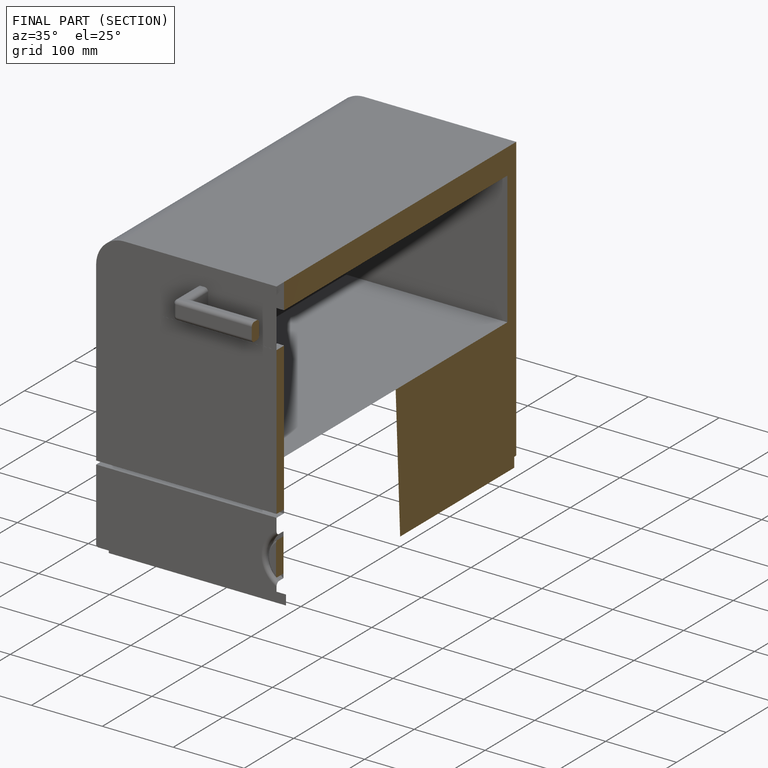
[diagram: finished part — half-section view (interior)]
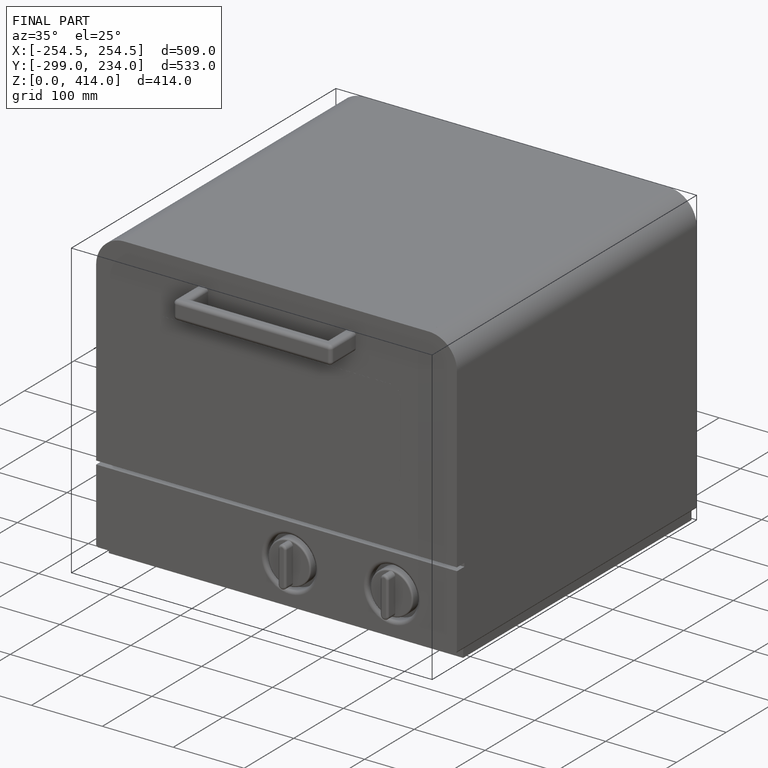
[diagram: finished part — iso view with bounding-box wireframe]
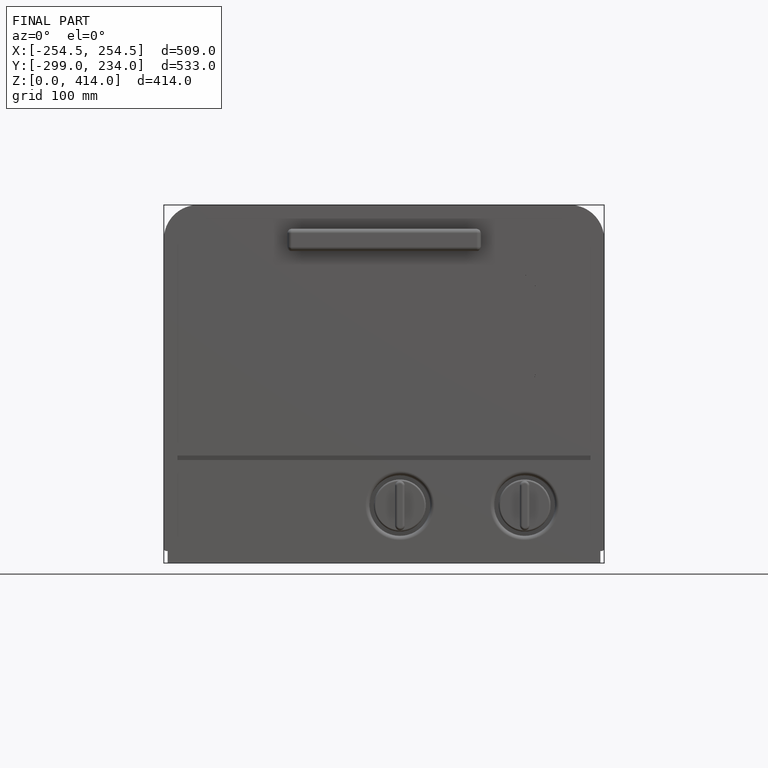
[diagram: finished part — front view with bounding-box wireframe]
